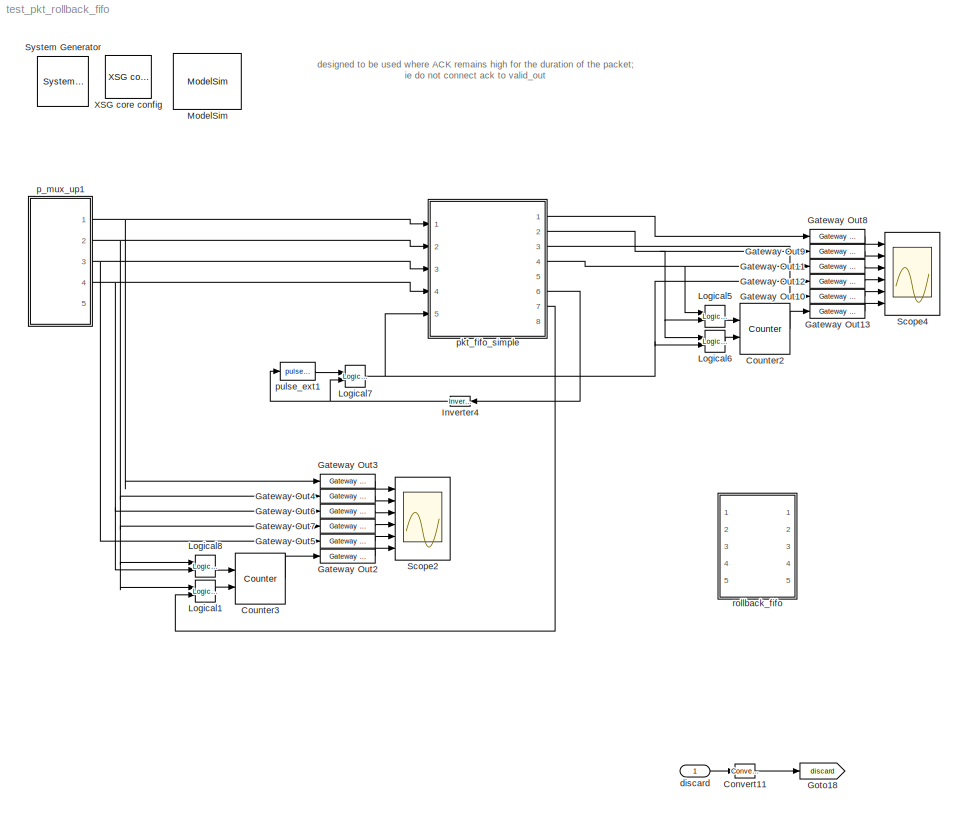
MODEL test_pkt_rollback_fifo
KIND model
BLOCK [Reference]  System Generator  REF=xbsIndex_r4/ System Generator
  AttributesFormatString = System\\nGenerator
  FunctionWithSeparateData = off
  Ports = []
  RTWMemSecDataConstants = Inherit from model
  RTWMemSecDataInternal = Inherit from model
  RTWMemSecDataParameters = Inherit from model
  RTWMemSecFuncExecute = Inherit from model
  RTWMemSecFuncInitTerm = Inherit from model
  ShowPortLabels = FromPortIcon
  SourceBlock = xbsIndex_r4/ System Generator
  SourceType = Xilinx System Generator Block
  SystemSampleTime = -1
  Tag = genX
  UserData = DataTag0
  UserDataPersistent = on
  block_type = sysgen
  block_version = 10.1.3
  clock_wrapper = Clock Enables
  core_generation = According to Block Masks
  dbl_ovrd = According to Block Masks
  dcm_input_clock_period = 100
  deprecated_control = off
  directory = ./test_10gbe_mux_pack/sysgen
  eval_field = 0
  has_advanced_control = 0
  incr_netlist = off
  infoedit = System Generator
  package = ff1704
  part = xc2vp70
  run_coregen = off
  sg_icon_stat = 51,50,-1,-1,red,beige,0,07734,right
  sg_mask_display = fprintf('','COMMENT: begin icon graphics');\npatch([0 51 51 0 ],[0 0 50 50 ],[0.93 0.92 0.86]);\npatch([12 4 16 4 12 25 29 33 47 36 25 17 29 17 25 36 47 33 29 25 12 ],[5 13 25 37 45 45 41 45 45 34 45 37 25 13 5 16 5 5 9 5 5 ],[0.6 0.2 0.25]);\nplot([0 51 51 0 0 ],[0 0 50 50 0 ]);\nfprintf('','COMMENT: end icon graphics');\nfprintf('','COMMENT: begin icon text');\nfprintf('','COMMENT: end icon text...<+5ch>
  sggui_pos = -1,-1,-1,-1
  simulink_period = 1
  speed = -7
  synthesis_tool = XST
  sysclk_period = 4.878
  testbench = off
  trim_vbits = Everywhere in SubSystem
  xilinxfamily = Virtex2P
BLOCK [Reference] Convert11  REF=xbsIndex_r4/Convert
  Ports = [1, 1]
  SourceBlock = xbsIndex_r4/Convert
  SourceType = Xilinx Type Converter Block
  arith_type = Boolean
  bin_pt = 6
  block_type = convert
  block_version = 10.1.3
  dbl_ovrd = off
  has_advanced_control = 0
  infoedit = Hardware notes: rounding and saturating require hardware resources; truncating and wrapping do not.
  latency = 0
  n_bits = 8
  overflow = Wrap
  pipeline = off
  quantization = Truncate
  sg_icon_stat = 20,14,1,1,white,blue,0,74901e60,right
  sg_mask_display = fprintf('','COMMENT: begin icon graphics');\npatch([0 45 45 0 ],[0 0 30 30 ],[0.77 0.82 0.91]);\npatch([15 10 17 10 15 23 25 27 35 28 22 17 23 17 22 28 35 27 25 23 15 ],[3 8 15 22 27 27 25 27 27 20 26 21 15 9 4 10 3 3 5 3 3 ],[0.98 0.96 0.92]);\nplot([0 45 45 0 0 ],[0 0 30 30 0 ]);\nfprintf('','COMMENT: end icon graphics');\nfprintf('','COMMENT: begin icon text');\ncolor('black');port_label('outpu...<+54ch>  <repeated x15 — deduplicated; at blocks: Convert11, Convert1, Convert2, Convert3, Convert, Convert10, Convert4, Convert5, Convert6, Convert7, Convert8, Convert9>
  sggui_pos = -1,-1,-1,-1
  xl_area = [0, 0, 0, 0, 0, 0, 0]
  xl_use_area = off
BLOCK [Reference] Counter2  REF=xbsIndex_r4/Counter
  Ports = [2, 1]
  SourceBlock = xbsIndex_r4/Counter
  SourceType = Xilinx Counter Block
  arith_type = Unsigned
  bin_pt = 0
  block_type = counter
  block_version = 10.1.3
  cnt_by_val = 1
  cnt_to = Inf
  cnt_type = Free Running
  dbl_ovrd = off
  en = on
  explicit_period = off
  has_advanced_control = 0
  implementation = Fabric
  infoedit = Hardware notes: Free running counters are the least expensive in hardware.  A count limited counter is implemented by combining a counter with a comparator.
  load_pin = off
  n_bits = 8
  operation = Up
  period = 1
  rst = on
  sg_icon_stat = 50,51,2,1,white,blue,0,46c73e85,right
  sg_mask_display = fprintf('','COMMENT: begin icon graphics');\npatch([0 50 50 0 ],[0 0 51 51 ],[0.77 0.82 0.91]);\npatch([11 3 15 3 11 24 28 32 46 35 24 16 28 16 24 35 46 32 28 24 11 ],[6 14 26 38 46 46 42 46 46 35 46 38 26 14 6 17 6 6 10 6 6 ],[0.98 0.96 0.92]);\nplot([0 50 50 0 0 ],[0 0 51 51 0 ]);\nfprintf('','COMMENT: end icon graphics');\nfprintf('','COMMENT: begin icon text');\ncolor('black');port_label('inpu...<+143ch>
  sggui_pos = -1,-1,-1,-1
  start_count = 0
  use_behavioral_HDL = off
  use_rpm = on
  xl_area = [0, 0, 0, 0, 0, 0, 0]
  xl_use_area = off
BLOCK [Reference] Counter3  REF=xbsIndex_r4/Counter
  Ports = [2, 1]
  SourceBlock = xbsIndex_r4/Counter
  SourceType = Xilinx Counter Block
  arith_type = Unsigned
  bin_pt = 0
  block_type = counter
  block_version = 10.1.3
  cnt_by_val = 1
  cnt_to = Inf
  cnt_type = Free Running
  dbl_ovrd = off
  en = on
  explicit_period = off
  has_advanced_control = 0
  implementation = Fabric
  infoedit = Hardware notes: Free running counters are the least expensive in hardware.  A count limited counter is implemented by combining a counter with a comparator.
  load_pin = off
  n_bits = 8
  operation = Up
  period = 1
  rst = on
  sg_icon_stat = 50,51,2,1,white,blue,0,46c73e85,right
  sg_mask_display = fprintf('','COMMENT: begin icon graphics');\npatch([0 50 50 0 ],[0 0 51 51 ],[0.77 0.82 0.91]);\npatch([11 3 15 3 11 24 28 32 46 35 24 16 28 16 24 35 46 32 28 24 11 ],[6 14 26 38 46 46 42 46 46 35 46 38 26 14 6 17 6 6 10 6 6 ],[0.98 0.96 0.92]);\nplot([0 50 50 0 0 ],[0 0 51 51 0 ]);\nfprintf('','COMMENT: end icon graphics');\nfprintf('','COMMENT: begin icon text');\ncolor('black');port_label('inpu...<+143ch>
  sggui_pos = -1,-1,-1,-1
  start_count = 0
  use_behavioral_HDL = off
  use_rpm = on
  xl_area = [0, 0, 0, 0, 0, 0, 0]
  xl_use_area = off
BLOCK [Reference] Gateway Out10  REF=xbsIndex_r4/Gateway Out
  LOCs = {}
  Ports = [1, 1]
  SourceBlock = xbsIndex_r4/Gateway Out
  SourceType = Xilinx Gateway Out Block
  block_type = gatewayout
  block_version = 10.1.3
  has_advanced_control = 0
  hdl_port = on
  infoedit = Gateway out block.  Converts Xilinx fixed point inputs into ouputs of type Simulink integer, double, or fixed point.<P><P>Hardware notes:  In hardware these blocks become top level output ports or are discarded, depending on how they are configured.  <repeated x32 — deduplicated; at blocks: Gateway Out10, Gateway Out11, Gateway Out12, Gateway Out13, Gateway Out2, Gateway Out3, Gateway Out4, Gateway Out5, Gateway Out6, Gateway Out7, Gateway Out8, Gateway Out9, Gateway Out1, Gateway Out14, Gateway Out22, Gateway Out23, +11 more>
  locs_specified = off
  sg_icon_stat = 55,14,1,1,white,yellow,0,38220381,right
  sg_mask_display = fprintf('','COMMENT: begin icon graphics');\npatch([0 55 55 0 ],[0 0 14 14 ],[0.95 0.93 0.65]);\npatch([23 21 24 21 23 27 28 29 33 30 27 25 28 25 27 30 33 29 28 27 23 ],[2 4 7 10 12 12 11 12 12 9 12 10 7 4 2 5 2 2 3 2 2 ],[0.98 0.96 0.92]);\nplot([0 55 55 0 0 ],[0 0 14 14 0 ]);\nfprintf('','COMMENT: end icon graphics');\nfprintf('','COMMENT: begin icon text');\ncolor('black');port_label('input',1,...<+129ch>  <repeated x12 — deduplicated; at blocks: Gateway Out10, Gateway Out11, Gateway Out12, Gateway Out13, Gateway Out2, Gateway Out3, Gateway Out4, Gateway Out5, Gateway Out6, Gateway Out7, Gateway Out8, Gateway Out9>
  sggui_pos = -1,-1,-1,-1
  timing_constraint = None
  xl_area = [0, 0, 0, 0, 0, 0, 0]
  xl_use_area = off
BLOCK [Reference] Gateway Out11  REF=xbsIndex_r4/Gateway Out
  LOCs = {}
  Ports = [1, 1]
  SourceBlock = xbsIndex_r4/Gateway Out
  SourceType = Xilinx Gateway Out Block
  block_type = gatewayout
  block_version = 10.1.3
  has_advanced_control = 0
  hdl_port = on
  locs_specified = off
  sg_icon_stat = 55,14,1,1,white,yellow,0,38220381,right
  sggui_pos = -1,-1,-1,-1
  timing_constraint = None
  xl_area = [0, 0, 0, 0, 0, 0, 0]
  xl_use_area = off
BLOCK [Reference] Gateway Out12  REF=xbsIndex_r4/Gateway Out
  LOCs = {}
  Ports = [1, 1]
  SourceBlock = xbsIndex_r4/Gateway Out
  SourceType = Xilinx Gateway Out Block
  block_type = gatewayout
  block_version = 10.1.3
  has_advanced_control = 0
  hdl_port = on
  locs_specified = off
  sg_icon_stat = 55,14,1,1,white,yellow,0,38220381,right
  sggui_pos = -1,-1,-1,-1
  timing_constraint = None
  xl_area = [0, 0, 0, 0, 0, 0, 0]
  xl_use_area = off
BLOCK [Reference] Gateway Out13  REF=xbsIndex_r4/Gateway Out
  LOCs = {}
  Ports = [1, 1]
  SourceBlock = xbsIndex_r4/Gateway Out
  SourceType = Xilinx Gateway Out Block
  block_type = gatewayout
  block_version = 10.1.3
  has_advanced_control = 0
  hdl_port = on
  locs_specified = off
  sg_icon_stat = 55,14,1,1,white,yellow,0,38220381,right
  sggui_pos = -1,-1,-1,-1
  timing_constraint = None
  xl_area = [0, 0, 0, 0, 0, 0, 0]
  xl_use_area = off
BLOCK [Reference] Gateway Out2  REF=xbsIndex_r4/Gateway Out
  LOCs = {}
  Ports = [1, 1]
  SourceBlock = xbsIndex_r4/Gateway Out
  SourceType = Xilinx Gateway Out Block
  block_type = gatewayout
  block_version = 10.1.3
  has_advanced_control = 0
  hdl_port = on
  locs_specified = off
  sg_icon_stat = 55,14,1,1,white,yellow,0,38220381,right
  sggui_pos = -1,-1,-1,-1
  timing_constraint = None
  xl_area = [0, 0, 0, 0, 0, 0, 0]
  xl_use_area = off
BLOCK [Reference] Gateway Out3  REF=xbsIndex_r4/Gateway Out
  LOCs = {}
  Ports = [1, 1]
  SourceBlock = xbsIndex_r4/Gateway Out
  SourceType = Xilinx Gateway Out Block
  block_type = gatewayout
  block_version = 10.1.3
  has_advanced_control = 0
  hdl_port = on
  locs_specified = off
  sg_icon_stat = 55,14,1,1,white,yellow,0,38220381,right
  sggui_pos = -1,-1,-1,-1
  timing_constraint = None
  xl_area = [0, 0, 0, 0, 0, 0, 0]
  xl_use_area = off
BLOCK [Reference] Gateway Out4  REF=xbsIndex_r4/Gateway Out
  LOCs = {}
  Ports = [1, 1]
  SourceBlock = xbsIndex_r4/Gateway Out
  SourceType = Xilinx Gateway Out Block
  block_type = gatewayout
  block_version = 10.1.3
  has_advanced_control = 0
  hdl_port = on
  locs_specified = off
  sg_icon_stat = 55,14,1,1,white,yellow,0,38220381,right
  sggui_pos = -1,-1,-1,-1
  timing_constraint = None
  xl_area = [0, 0, 0, 0, 0, 0, 0]
  xl_use_area = off
BLOCK [Reference] Gateway Out5  REF=xbsIndex_r4/Gateway Out
  LOCs = {}
  Ports = [1, 1]
  SourceBlock = xbsIndex_r4/Gateway Out
  SourceType = Xilinx Gateway Out Block
  block_type = gatewayout
  block_version = 10.1.3
  has_advanced_control = 0
  hdl_port = on
  locs_specified = off
  sg_icon_stat = 55,14,1,1,white,yellow,0,38220381,right
  sggui_pos = -1,-1,-1,-1
  timing_constraint = None
  xl_area = [0, 0, 0, 0, 0, 0, 0]
  xl_use_area = off
BLOCK [Reference] Gateway Out6  REF=xbsIndex_r4/Gateway Out
  LOCs = {}
  Ports = [1, 1]
  SourceBlock = xbsIndex_r4/Gateway Out
  SourceType = Xilinx Gateway Out Block
  block_type = gatewayout
  block_version = 10.1.3
  has_advanced_control = 0
  hdl_port = on
  locs_specified = off
  sg_icon_stat = 55,14,1,1,white,yellow,0,38220381,right
  sggui_pos = -1,-1,-1,-1
  timing_constraint = None
  xl_area = [0, 0, 0, 0, 0, 0, 0]
  xl_use_area = off
BLOCK [Reference] Gateway Out7  REF=xbsIndex_r4/Gateway Out
  LOCs = {}
  Ports = [1, 1]
  SourceBlock = xbsIndex_r4/Gateway Out
  SourceType = Xilinx Gateway Out Block
  block_type = gatewayout
  block_version = 10.1.3
  has_advanced_control = 0
  hdl_port = on
  locs_specified = off
  sg_icon_stat = 55,14,1,1,white,yellow,0,38220381,right
  sggui_pos = -1,-1,-1,-1
  timing_constraint = None
  xl_area = [0, 0, 0, 0, 0, 0, 0]
  xl_use_area = off
BLOCK [Reference] Gateway Out8  REF=xbsIndex_r4/Gateway Out
  LOCs = {}
  Ports = [1, 1]
  SourceBlock = xbsIndex_r4/Gateway Out
  SourceType = Xilinx Gateway Out Block
  block_type = gatewayout
  block_version = 10.1.3
  has_advanced_control = 0
  hdl_port = on
  locs_specified = off
  sg_icon_stat = 55,14,1,1,white,yellow,0,38220381,right
  sggui_pos = -1,-1,-1,-1
  timing_constraint = None
  xl_area = [0, 0, 0, 0, 0, 0, 0]
  xl_use_area = off
BLOCK [Reference] Gateway Out9  REF=xbsIndex_r4/Gateway Out
  LOCs = {}
  Ports = [1, 1]
  SourceBlock = xbsIndex_r4/Gateway Out
  SourceType = Xilinx Gateway Out Block
  block_type = gatewayout
  block_version = 10.1.3
  has_advanced_control = 0
  hdl_port = on
  locs_specified = off
  sg_icon_stat = 55,14,1,1,white,yellow,0,38220381,right
  sggui_pos = -1,-1,-1,-1
  timing_constraint = None
  xl_area = [0, 0, 0, 0, 0, 0, 0]
  xl_use_area = off
BLOCK [Goto] Goto18
  GotoTag = discard
  TagVisibility = local
BLOCK [Reference] Inverter4  REF=xbsIndex_r4/Inverter
  Ports = [1, 1]
  SourceBlock = xbsIndex_r4/Inverter
  SourceType = Xilinx Inverter Block
  block_type = inv
  block_version = 10.1.3
  dbl_ovrd = off
  en = off
  has_advanced_control = 0
  infoedit = Bitwise logical negation (one's complement) operator.
  latency = 0
  sg_icon_stat = 20,10,1,1,white,blue,0,1ab4a85f,left
  sg_mask_display = fprintf('','COMMENT: begin icon graphics');\npatch([0 55 55 0 ],[0 0 58 58 ],[0.77 0.82 0.91]);\npatch([13 4 17 4 13 28 32 36 52 40 28 19 32 19 28 40 52 36 32 28 13 ],[7 16 29 42 51 51 47 51 51 39 51 42 29 16 7 19 7 7 11 7 7 ],[0.98 0.96 0.92]);\nplot([0 55 55 0 0 ],[0 0 58 58 0 ]);\nfprintf('','COMMENT: end icon graphics');\nfprintf('','COMMENT: begin icon text');\ncolor('black');disp('not');\nfp...<+37ch>  <repeated x6 — deduplicated; at blocks: Inverter4, Inverter, Inverter1, Inverter2>
  sggui_pos = -1,-1,-1,-1
  xl_area = [0, 0, 0, 0, 0, 0, 0]
  xl_use_area = off
BLOCK [Reference] Logical1  REF=xbsIndex_r4/Logical
  Ports = [2, 1]
  SourceBlock = xbsIndex_r4/Logical
  SourceType = Xilinx Logical Block Block
  align_bp = on
  arith_type = Unsigned
  bin_pt = 2
  block_type = logical
  block_version = 10.1.3
  dbl_ovrd = off
  en = off
  has_advanced_control = 0
  inputs = 2
  latency = 0
  logical_function = AND
  n_bits = 8
  precision = Full
  sg_icon_stat = 20,22,2,1,white,blue,0,087b5522,right
  sg_mask_display = fprintf('','COMMENT: begin icon graphics');\npatch([0 55 55 0 ],[0 0 60 60 ],[0.77 0.82 0.91]);\npatch([13 4 17 4 13 28 32 36 52 40 28 19 32 19 28 40 52 36 32 28 13 ],[8 17 30 43 52 52 48 52 52 40 52 43 30 17 8 20 8 8 12 8 8 ],[0.98 0.96 0.92]);\nplot([0 55 55 0 0 ],[0 0 60 60 0 ]);\nfprintf('','COMMENT: end icon graphics');\nfprintf('','COMMENT: begin icon text');\ncolor('black');disp('\\newlinea...<+76ch>  <repeated x9 — deduplicated; at blocks: Logical1, Logical5, Logical6, Logical8, commit, fifo_empty, fifo_empty1, fifo_empty2, valid_eof_0>
  sggui_pos = -1,-1,-1,-1
  xl_area = [0, 0, 0, 0, 0, 0, 0]
  xl_use_area = off
BLOCK [Reference] Logical5  REF=xbsIndex_r4/Logical
  Ports = [2, 1]
  SourceBlock = xbsIndex_r4/Logical
  SourceType = Xilinx Logical Block Block
  align_bp = on
  arith_type = Unsigned
  bin_pt = 2
  block_type = logical
  block_version = 10.1.3
  dbl_ovrd = off
  en = off
  has_advanced_control = 0
  inputs = 2
  latency = 0
  logical_function = AND
  n_bits = 8
  precision = Full
  sg_icon_stat = 20,22,2,1,white,blue,0,087b5522,right
  sggui_pos = -1,-1,-1,-1
  xl_area = [0, 0, 0, 0, 0, 0, 0]
  xl_use_area = off
BLOCK [Reference] Logical6  REF=xbsIndex_r4/Logical
  Ports = [2, 1]
  SourceBlock = xbsIndex_r4/Logical
  SourceType = Xilinx Logical Block Block
  align_bp = on
  arith_type = Unsigned
  bin_pt = 2
  block_type = logical
  block_version = 10.1.3
  dbl_ovrd = off
  en = off
  has_advanced_control = 0
  inputs = 2
  latency = 0
  logical_function = AND
  n_bits = 8
  precision = Full
  sg_icon_stat = 20,22,2,1,white,blue,0,087b5522,right
  sggui_pos = -1,-1,-1,-1
  xl_area = [0, 0, 0, 0, 0, 0, 0]
  xl_use_area = off
BLOCK [Reference] Logical7  REF=xbsIndex_r4/Logical
  Ports = [2, 1]
  SourceBlock = xbsIndex_r4/Logical
  SourceType = Xilinx Logical Block Block
  align_bp = on
  arith_type = Unsigned
  bin_pt = 2
  block_type = logical
  block_version = 10.1.3
  dbl_ovrd = off
  en = off
  has_advanced_control = 0
  inputs = 2
  latency = 0
  logical_function = OR
  n_bits = 8
  precision = Full
  sg_icon_stat = 20,22,2,1,white,blue,0,f4a65842,right
  sg_mask_display = fprintf('','COMMENT: begin icon graphics');\npatch([0 55 55 0 ],[0 0 60 60 ],[0.77 0.82 0.91]);\npatch([13 4 17 4 13 28 32 36 52 40 28 19 32 19 28 40 52 36 32 28 13 ],[8 17 30 43 52 52 48 52 52 40 52 43 30 17 8 20 8 8 12 8 8 ],[0.98 0.96 0.92]);\nplot([0 55 55 0 0 ],[0 0 60 60 0 ]);\nfprintf('','COMMENT: end icon graphics');\nfprintf('','COMMENT: begin icon text');\ncolor('black');disp('\\newlineo...<+75ch>
  sggui_pos = -1,-1,-1,-1
  xl_area = [0, 0, 0, 0, 0, 0, 0]
  xl_use_area = off
BLOCK [Reference] Logical8  REF=xbsIndex_r4/Logical
  Ports = [2, 1]
  SourceBlock = xbsIndex_r4/Logical
  SourceType = Xilinx Logical Block Block
  align_bp = on
  arith_type = Unsigned
  bin_pt = 2
  block_type = logical
  block_version = 10.1.3
  dbl_ovrd = off
  en = off
  has_advanced_control = 0
  inputs = 2
  latency = 0
  logical_function = AND
  n_bits = 8
  precision = Full
  sg_icon_stat = 20,22,2,1,white,blue,0,087b5522,right
  sggui_pos = -1,-1,-1,-1
  xl_area = [0, 0, 0, 0, 0, 0, 0]
  xl_use_area = off
BLOCK [Reference] ModelSim  REF=xbsIndex_r4/ModelSim
  Ports = []
  SourceBlock = xbsIndex_r4/ModelSim
  SourceType = ModelSim HDL Co-Simulation Interface Block
  block_type = hdlcosim
  block_version = 10.1.3
  custom_scripts = off
  dir = ./modelsim
  has_advanced_control = 0
  infoedit = Allow other blocks to schedule HDL co-simulation tasks.<P><P>Note that selecting \"Skip compilation\" when inappropriate can cause simulation errors and failures. Please refer to the block help for details.
  leave_open = on
  sg_icon_stat = 68,56,0,0,blue,white,0,30303992,right
  sg_mask_display = fprintf('','COMMENT: begin icon graphics');\npatch([0 65 65 0 ],[0 0 56 56 ],[0.98 0.96 0.92]);\npatch([17 8 21 8 17 32 36 40 56 43 31 22 34 22 31 43 56 40 36 32 17 ],[6 15 28 41 50 50 46 50 50 37 49 40 28 16 7 19 6 6 10 6 6 ],[0.77 0.82 0.91]);\nplot([0 65 65 0 0 ],[0 0 56 56 0 ]);\nfprintf('','COMMENT: end icon graphics');\nfprintf('','COMMENT: begin icon text');\n\nfprintf('','COMMENT: end icon...<+32ch>
  sggui_pos = -1,-1,-1,-1
  skip_compile = off
  startup_timeout = 40
  use_unisim = off
  waveform = on
BLOCK [Scope] Scope2
  DataFormat = StructureWithTime
  Floating = off
  LimitDataPoints = off
  NumInputPorts = 6
  Ports = [6]
  SampleTime = 0
  SaveName = ScopeData5
  YMax = 453.6~1~1~1~1~5
  YMin = 410.4~-1~-1~-1~0~-5
  ZoomMode = xonly
BLOCK [Scope] Scope4
  DataFormat = StructureWithTime
  Floating = off
  LimitDataPoints = off
  NumInputPorts = 6
  Ports = [6]
  SampleTime = 0
  SaveName = ScopeData7
  YMax = 453.6~1~1~1~1~5
  YMin = 410.4~-1~-1~-1~0~-5
  ZoomMode = yonly
BLOCK [Reference] XSG core config  REF=xps_library/XSG core config  (lib defined in mdl_00b5cec29cd0, mdl_02ab6ecaa3d1, +5 more)
  BEE2_ctrl_clk_src = sys_clk
  BEE2_usr_clk_src = sys_clk
  CORR_clk_src = sys_clk
  FunctionWithSeparateData = off
  Ports = []
  ROACH_clk_src = arb_clk
  RTWMemSecDataConstants = Inherit from model
  RTWMemSecDataInternal = Inherit from model
  RTWMemSecDataParameters = Inherit from model
  RTWMemSecFuncExecute = Inherit from model
  RTWMemSecFuncInitTerm = Inherit from model
  ShowPortLabels = FromPortIcon
  SourceBlock = xps_library/XSG core config
  SourceType = xsg core config
  SystemSampleTime = -1
  Tag = xps:xsg
  clk_rate = 100
  clk_src = sys_clk
  gpio_clk_bit_index = 0
  gpio_clk_io_group = iBOB:sma
  hw_sys = BEE2_usr
  iBOB_clk_src = sys_clk
  ibob_linux = off
  mpc_type = powerpc405
  sample_period = 1
  synthesis_tool = XST
BLOCK [Inport] discard
  IconDisplay = Port number
  OutDataType = sfix(16)
  OutScaling = 2^0
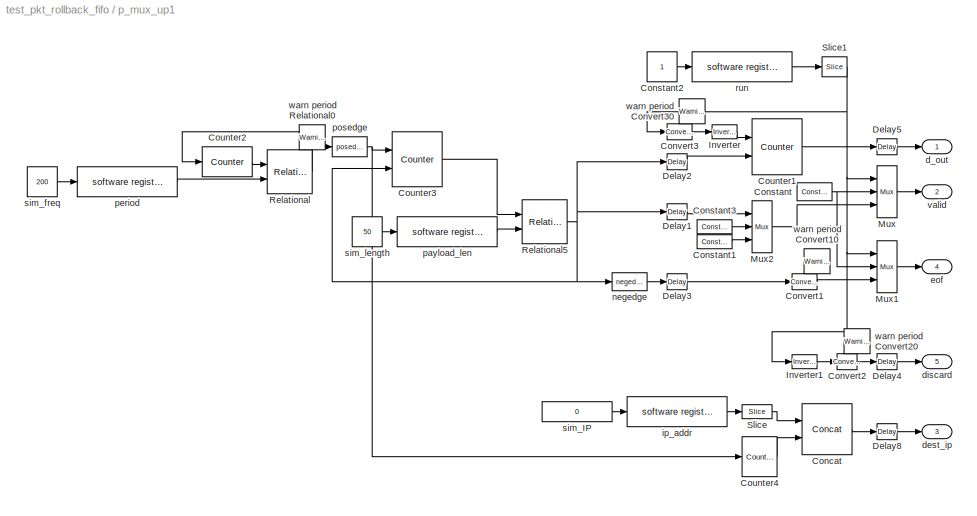
BLOCK [SubSystem] p_mux_up1
  FunctionWithSeparateData = off
  MaskIconFrame = on
  MaskIconOpaque = on
  MaskIconRotate = none
  MaskIconUnits = autoscale
  MinAlgLoopOccurrences = off
  Ports = [0, 5]
  RTWSystemCode = Auto
BLOCK [Reference] p_mux_up1/Concat  REF=xbsIndex_r4/Concat
  Ports = [2, 1]
  SourceBlock = xbsIndex_r4/Concat
  SourceType = Xilinx Bus Concatenator Block
  block_type = concat
  block_version = 10.1.3
  dbl_ovrd = off
  has_advanced_control = 0
  infoedit = Concatenates two or more inputs.  Output will be cast to an unsigned value with the binary point at zero.
  num_inputs = 2
  sg_icon_stat = 50,51,1,1,white,blue,0,df1e5aba,right
  sg_mask_display = fprintf('','COMMENT: begin icon graphics');\npatch([0 60 60 0 ],[0 0 60 60 ],[0.77 0.82 0.91]);\npatch([14 4 18 4 14 30 34 38 55 42 29 20 35 20 29 42 55 38 34 30 14 ],[6 16 30 44 54 54 50 54 54 41 54 45 30 15 6 19 6 6 10 6 6 ],[0.98 0.96 0.92]);\nplot([0 60 60 0 0 ],[0 0 60 60 0 ]);\nfprintf('','COMMENT: end icon graphics');\nfprintf('','COMMENT: begin icon text');\ncolor('black');port_label('inpu...<+96ch>  <repeated x4 — deduplicated; at blocks: Concat, Concat3, Concat_status>
  sggui_pos = -1,-1,-1,-1
BLOCK [Reference] p_mux_up1/Constant  REF=xbsIndex_r4/Constant
  Ports = [0, 1]
  SourceBlock = xbsIndex_r4/Constant
  SourceType = Xilinx Constant Block Block
  arith_type = Boolean
  bin_pt = 0
  block_type = constant
  block_version = 10.1.3
  carry = CIN
  const = 0
  dbl_ovrd = off
  dsp48_infoedit = The use of this block for DSP48 instructions is deprecated.  Please use the Opmode block.
  equ = P=C
  explicit_period = on
  has_advanced_control = 0
  inp1 = P
  inp2 = PCIN>>17
  n_bits = 1
  opr = +
  opselect = C
  period = 1
  sg_icon_stat = 35,18,1,1,white,blue,0,72d575a1,right
  sg_mask_display = fprintf('','COMMENT: begin icon graphics');\npatch([0 55 55 0 ],[0 0 26 26 ],[0.77 0.82 0.91]);\npatch([20 16 22 16 20 27 29 31 38 32 26 22 28 22 26 32 38 31 29 27 20 ],[3 7 13 19 23 23 21 23 23 17 23 19 13 7 3 9 3 3 5 3 3 ],[0.98 0.96 0.92]);\nplot([0 55 55 0 0 ],[0 0 26 26 0 ]);\nfprintf('','COMMENT: end icon graphics');\nfprintf('','COMMENT: begin icon text');\ncolor('black');port_label('output...<+50ch>  <repeated x4 — deduplicated; at blocks: Constant, Constant1, Constant3, Constant7>
  sggui_pos = -1,-1,-1,-1
BLOCK [Reference] p_mux_up1/Constant1  REF=xbsIndex_r4/Constant
  Ports = [0, 1]
  SourceBlock = xbsIndex_r4/Constant
  SourceType = Xilinx Constant Block Block
  arith_type = Boolean
  bin_pt = 0
  block_type = constant
  block_version = 10.1.3
  carry = CIN
  const = 1
  dbl_ovrd = off
  dsp48_infoedit = The use of this block for DSP48 instructions is deprecated.  Please use the Opmode block.
  equ = P=C
  explicit_period = off
  has_advanced_control = 0
  inp1 = P
  inp2 = PCIN>>17
  n_bits = 1
  opr = +
  opselect = C
  period = 1
  sg_icon_stat = 35,14,1,1,white,blue,0,06094819,right
  sggui_pos = -1,-1,-1,-1
BLOCK [Constant] p_mux_up1/Constant2
  OutDataType = sfix(16)
  OutScaling = 2^0
BLOCK [Reference] p_mux_up1/Constant3  REF=xbsIndex_r4/Constant
  Ports = [0, 1]
  SourceBlock = xbsIndex_r4/Constant
  SourceType = Xilinx Constant Block Block
  arith_type = Boolean
  bin_pt = 0
  block_type = constant
  block_version = 10.1.3
  carry = CIN
  const = 0
  dbl_ovrd = off
  dsp48_infoedit = The use of this block for DSP48 instructions is deprecated.  Please use the Opmode block.
  equ = P=C
  explicit_period = off
  has_advanced_control = 0
  inp1 = P
  inp2 = PCIN>>17
  n_bits = 1
  opr = +
  opselect = C
  period = 1
  sg_icon_stat = 35,14,1,1,white,blue,0,72d575a1,right
  sggui_pos = -1,-1,-1,-1
BLOCK [Reference] p_mux_up1/Convert1  REF=xbsIndex_r4/Convert
  Ports = [1, 1]
  SourceBlock = xbsIndex_r4/Convert
  SourceType = Xilinx Type Converter Block
  arith_type = Boolean
  bin_pt = 6
  block_type = convert
  block_version = 10.1.3
  dbl_ovrd = off
  has_advanced_control = 0
  infoedit = Hardware notes: rounding and saturating require hardware resources; truncating and wrapping do not.
  latency = 0
  n_bits = 8
  overflow = Wrap
  pipeline = off
  quantization = Truncate
  sg_icon_stat = 25,16,1,1,white,blue,0,74901e60,right
  sggui_pos = -1,-1,-1,-1
  xl_area = [0, 0, 0, 0, 0, 0, 0]
  xl_use_area = off
BLOCK [Reference] p_mux_up1/Convert2  REF=xbsIndex_r4/Convert
  Ports = [1, 1]
  SourceBlock = xbsIndex_r4/Convert
  SourceType = Xilinx Type Converter Block
  arith_type = Boolean
  bin_pt = 6
  block_type = convert
  block_version = 10.1.3
  dbl_ovrd = off
  has_advanced_control = 0
  infoedit = Hardware notes: rounding and saturating require hardware resources; truncating and wrapping do not.
  latency = 0
  n_bits = 8
  overflow = Wrap
  pipeline = off
  quantization = Truncate
  sg_icon_stat = 20,16,1,1,white,blue,0,74901e60,right
  sggui_pos = -1,-1,-1,-1
  xl_area = [0, 0, 0, 0, 0, 0, 0]
  xl_use_area = off
BLOCK [Reference] p_mux_up1/Convert3  REF=xbsIndex_r4/Convert
  Ports = [1, 1]
  SourceBlock = xbsIndex_r4/Convert
  SourceType = Xilinx Type Converter Block
  arith_type = Boolean
  bin_pt = 6
  block_type = convert
  block_version = 10.1.3
  dbl_ovrd = off
  has_advanced_control = 0
  infoedit = Hardware notes: rounding and saturating require hardware resources; truncating and wrapping do not.
  latency = 0
  n_bits = 8
  overflow = Wrap
  pipeline = off
  quantization = Truncate
  sg_icon_stat = 25,16,1,1,white,blue,0,74901e60,right
  sggui_pos = -1,-1,-1,-1
  xl_area = [0, 0, 0, 0, 0, 0, 0]
  xl_use_area = off
BLOCK [Reference] p_mux_up1/Counter1  REF=xbsIndex_r4/Counter
  Ports = [2, 1]
  SourceBlock = xbsIndex_r4/Counter
  SourceType = Xilinx Counter Block
  arith_type = Unsigned
  bin_pt = 0
  block_type = counter
  block_version = 10.1.3
  cnt_by_val = 1
  cnt_to = Inf
  cnt_type = Free Running
  dbl_ovrd = off
  en = on
  explicit_period = off
  has_advanced_control = 0
  implementation = Fabric
  infoedit = Hardware notes: Free running counters are the least expensive in hardware.  A count limited counter is implemented by combining a counter with a comparator.
  load_pin = off
  n_bits = 64
  operation = Up
  period = 1
  rst = on
  sg_icon_stat = 50,56,1,1,white,blue,0,46c73e85,right
  sg_mask_display = fprintf('','COMMENT: begin icon graphics');\npatch([0 60 60 0 ],[0 0 60 60 ],[0.77 0.82 0.91]);\npatch([14 4 18 4 14 30 34 38 55 42 29 20 35 20 29 42 55 38 34 30 14 ],[6 16 30 44 54 54 50 54 54 41 54 45 30 15 6 19 6 6 10 6 6 ],[0.98 0.96 0.92]);\nplot([0 60 60 0 0 ],[0 0 60 60 0 ]);\nfprintf('','COMMENT: end icon graphics');\nfprintf('','COMMENT: begin icon text');\ncolor('black');port_label('inpu...<+143ch>
  sggui_pos = -1,-1,-1,-1
  start_count = 0
  use_behavioral_HDL = off
  use_rpm = off
  xl_area = [0, 0, 0, 0, 0, 0, 0]
  xl_use_area = off
BLOCK [Reference] p_mux_up1/Counter2  REF=xbsIndex_r4/Counter
  Ports = [1, 1]
  SourceBlock = xbsIndex_r4/Counter
  SourceType = Xilinx Counter Block
  arith_type = Unsigned
  bin_pt = 0
  block_type = counter
  block_version = 10.1.3
  cnt_by_val = 1
  cnt_to = Inf
  cnt_type = Free Running
  dbl_ovrd = off
  en = off
  explicit_period = on
  has_advanced_control = 0
  implementation = Fabric
  infoedit = Hardware notes: Free running counters are the least expensive in hardware.  A count limited counter is implemented by combining a counter with a comparator.
  load_pin = off
  n_bits = 32
  operation = Up
  period = 1
  rst = on
  sg_icon_stat = 50,30,1,1,white,blue,0,300e9576,right
  sg_mask_display = fprintf('','COMMENT: begin icon graphics');\npatch([0 60 60 0 ],[0 0 60 60 ],[0.77 0.82 0.91]);\npatch([14 4 18 4 14 30 34 38 55 42 29 20 35 20 29 42 55 38 34 30 14 ],[6 16 30 44 54 54 50 54 54 41 54 45 30 15 6 19 6 6 10 6 6 ],[0.98 0.96 0.92]);\nplot([0 60 60 0 0 ],[0 0 60 60 0 ]);\nfprintf('','COMMENT: end icon graphics');\nfprintf('','COMMENT: begin icon text');\ncolor('black');port_label('inpu...<+99ch>
  sggui_pos = -1,-1,-1,-1
  start_count = 1
  use_behavioral_HDL = off
  use_rpm = on
  xl_area = [0, 0, 0, 0, 0, 0, 0]
  xl_use_area = off
BLOCK [Reference] p_mux_up1/Counter3  REF=xbsIndex_r4/Counter
  Ports = [2, 1]
  SourceBlock = xbsIndex_r4/Counter
  SourceType = Xilinx Counter Block
  arith_type = Unsigned
  bin_pt = 0
  block_type = counter
  block_version = 10.1.3
  cnt_by_val = 1
  cnt_to = 1023
  cnt_type = Free Running
  dbl_ovrd = off
  en = on
  explicit_period = on
  has_advanced_control = 0
  implementation = Fabric
  infoedit = Hardware notes: Free running counters are the least expensive in hardware.  A count limited counter is implemented by combining a counter with a comparator.
  load_pin = off
  n_bits = 32
  operation = Up
  period = 1
  rst = on
  sg_icon_stat = 50,55,1,1,white,blue,0,46c73e85,right
  sg_mask_display = fprintf('','COMMENT: begin icon graphics');\npatch([0 50 50 0 ],[0 0 55 55 ],[0.77 0.82 0.91]);\npatch([11 3 15 3 11 24 28 32 46 35 24 16 28 16 24 35 46 32 28 24 11 ],[8 16 28 40 48 48 44 48 48 37 48 40 28 16 8 19 8 8 12 8 8 ],[0.98 0.96 0.92]);\nplot([0 50 50 0 0 ],[0 0 55 55 0 ]);\nfprintf('','COMMENT: end icon graphics');\nfprintf('','COMMENT: begin icon text');\ncolor('black');port_label('inpu...<+143ch>
  sggui_pos = -1,-1,-1,-1
  start_count = 0
  use_behavioral_HDL = off
  use_rpm = on
  xl_area = [0, 0, 0, 0, 0, 0, 0]
  xl_use_area = off
BLOCK [Reference] p_mux_up1/Counter4  REF=xbsIndex_r4/Counter
  Ports = [1, 1]
  SourceBlock = xbsIndex_r4/Counter
  SourceType = Xilinx Counter Block
  arith_type = Unsigned
  bin_pt = 0
  block_type = counter
  block_version = 10.1.3
  cnt_by_val = 1
  cnt_to = 1023
  cnt_type = Free Running
  dbl_ovrd = off
  en = on
  explicit_period = on
  has_advanced_control = 0
  implementation = Fabric
  infoedit = Hardware notes: Free running counters are the least expensive in hardware.  A count limited counter is implemented by combining a counter with a comparator.
  load_pin = off
  n_bits = 2
  operation = Up
  period = 1
  rst = off
  sg_icon_stat = 35,40,1,1,white,blue,0,1018756c,right
  sg_mask_display = fprintf('','COMMENT: begin icon graphics');\npatch([0 60 60 0 ],[0 0 60 60 ],[0.77 0.82 0.91]);\npatch([14 4 18 4 14 30 34 38 55 42 29 20 35 20 29 42 55 38 34 30 14 ],[6 16 30 44 54 54 50 54 54 41 54 45 30 15 6 19 6 6 10 6 6 ],[0.98 0.96 0.92]);\nplot([0 60 60 0 0 ],[0 0 60 60 0 ]);\nfprintf('','COMMENT: end icon graphics');\nfprintf('','COMMENT: begin icon text');\ncolor('black');port_label('inpu...<+98ch>
  sggui_pos = -1,-1,-1,-1
  start_count = 0
  use_behavioral_HDL = off
  use_rpm = on
  xl_area = [0, 0, 0, 0, 0, 0, 0]
  xl_use_area = off
BLOCK [Reference] p_mux_up1/Delay1  REF=xbsIndex_r4/Delay
  Ports = [1, 1]
  SourceBlock = xbsIndex_r4/Delay
  SourceType = Xilinx Delay Block
  block_type = delay
  block_version = 10.1.3
  dbl_ovrd = off
  en = off
  has_advanced_control = 0
  infoedit = Hardware notes: A delay line is a chain, each link of which is an SRL16 followed by a flip-flop.
  latency = 1
  reg_retiming = on
  sg_icon_stat = 20,16,1,1,white,blue,0,fc531c0e,right
  sg_mask_display = fprintf('','COMMENT: begin icon graphics');\npatch([0 60 60 0 ],[0 0 56 56 ],[0.77 0.82 0.91]);\npatch([15 6 19 6 15 30 34 38 54 41 29 20 32 20 29 41 54 38 34 30 15 ],[6 15 28 41 50 50 46 50 50 37 49 40 28 16 7 19 6 6 10 6 6 ],[0.98 0.96 0.92]);\nplot([0 60 60 0 0 ],[0 0 56 56 0 ]);\nfprintf('','COMMENT: end icon graphics');\nfprintf('','COMMENT: begin icon text');\ncolor('black');disp('z^{-1}','t...<+55ch>  <repeated x9 — deduplicated; at blocks: Delay1, Delay2, Delay3, Delay4, Delay5, Delay>
  sggui_pos = -1,-1,-1,-1
  xl_area = [0, 0, 0, 0, 0, 0, 0]
  xl_use_area = off
BLOCK [Reference] p_mux_up1/Delay2  REF=xbsIndex_r4/Delay
  Ports = [1, 1]
  SourceBlock = xbsIndex_r4/Delay
  SourceType = Xilinx Delay Block
  block_type = delay
  block_version = 10.1.3
  dbl_ovrd = off
  en = off
  has_advanced_control = 0
  infoedit = Hardware notes: A delay line is a chain, each link of which is an SRL16 followed by a flip-flop.
  latency = 1
  reg_retiming = on
  sg_icon_stat = 20,16,1,1,white,blue,0,fc531c0e,right
  sggui_pos = -1,-1,-1,-1
  xl_area = [0, 0, 0, 0, 0, 0, 0]
  xl_use_area = off
BLOCK [Reference] p_mux_up1/Delay3  REF=xbsIndex_r4/Delay
  Ports = [1, 1]
  SourceBlock = xbsIndex_r4/Delay
  SourceType = Xilinx Delay Block
  block_type = delay
  block_version = 10.1.3
  dbl_ovrd = off
  en = off
  has_advanced_control = 0
  infoedit = Hardware notes: A delay line is a chain, each link of which is an SRL16 followed by a flip-flop.
  latency = 1
  reg_retiming = on
  sg_icon_stat = 20,16,1,1,white,blue,0,fc531c0e,right
  sggui_pos = -1,-1,-1,-1
  xl_area = [0, 0, 0, 0, 0, 0, 0]
  xl_use_area = off
BLOCK [Reference] p_mux_up1/Delay4  REF=xbsIndex_r4/Delay
  Ports = [1, 1]
  SourceBlock = xbsIndex_r4/Delay
  SourceType = Xilinx Delay Block
  block_type = delay
  block_version = 10.1.3
  dbl_ovrd = off
  en = off
  has_advanced_control = 0
  infoedit = Hardware notes: A delay line is a chain, each link of which is an SRL16 followed by a flip-flop.
  latency = 1
  reg_retiming = on
  sg_icon_stat = 20,16,1,1,white,blue,0,fc531c0e,right
  sggui_pos = -1,-1,-1,-1
  xl_area = [0, 0, 0, 0, 0, 0, 0]
  xl_use_area = off
BLOCK [Reference] p_mux_up1/Delay5  REF=xbsIndex_r4/Delay
  Ports = [1, 1]
  SourceBlock = xbsIndex_r4/Delay
  SourceType = Xilinx Delay Block
  block_type = delay
  block_version = 10.1.3
  dbl_ovrd = off
  en = off
  has_advanced_control = 0
  infoedit = Hardware notes: A delay line is a chain, each link of which is an SRL16 followed by a flip-flop.
  latency = 1
  reg_retiming = on
  sg_icon_stat = 20,16,1,1,white,blue,0,fc531c0e,right
  sggui_pos = -1,-1,-1,-1
  xl_area = [0, 0, 0, 0, 0, 0, 0]
  xl_use_area = off
BLOCK [Reference] p_mux_up1/Delay8  REF=xbsIndex_r4/Delay
  Ports = [1, 1]
  SourceBlock = xbsIndex_r4/Delay
  SourceType = Xilinx Delay Block
  block_type = delay
  block_version = 10.1.3
  dbl_ovrd = off
  en = off
  has_advanced_control = 0
  infoedit = Hardware notes: A delay line is a chain, each link of which is an SRL16 followed by a flip-flop.
  latency = 2
  reg_retiming = on
  sg_icon_stat = 20,16,1,1,white,blue,0,0a7a6cf1,right
  sg_mask_display = fprintf('','COMMENT: begin icon graphics');\npatch([0 60 60 0 ],[0 0 56 56 ],[0.77 0.82 0.91]);\npatch([15 6 19 6 15 30 34 38 54 41 29 20 32 20 29 41 54 38 34 30 15 ],[6 15 28 41 50 50 46 50 50 37 49 40 28 16 7 19 6 6 10 6 6 ],[0.98 0.96 0.92]);\nplot([0 60 60 0 0 ],[0 0 56 56 0 ]);\nfprintf('','COMMENT: end icon graphics');\nfprintf('','COMMENT: begin icon text');\ncolor('black');disp('z^{-2}','t...<+55ch>
  sggui_pos = -1,-1,-1,-1
  xl_area = [0, 0, 0, 0, 0, 0, 0]
  xl_use_area = off
BLOCK [Reference] p_mux_up1/Inverter  REF=xbsIndex_r4/Inverter
  Ports = [1, 1]
  SourceBlock = xbsIndex_r4/Inverter
  SourceType = Xilinx Inverter Block
  block_type = inv
  block_version = 10.1.3
  dbl_ovrd = off
  en = off
  has_advanced_control = 0
  infoedit = Bitwise logical negation (one's complement) operator.
  latency = 0
  sg_icon_stat = 25,14,1,1,white,blue,0,1ab4a85f,right
  sggui_pos = -1,-1,-1,-1
  xl_area = [0, 0, 0, 0, 0, 0, 0]
  xl_use_area = off
BLOCK [Reference] p_mux_up1/Inverter1  REF=xbsIndex_r4/Inverter
  Ports = [1, 1]
  SourceBlock = xbsIndex_r4/Inverter
  SourceType = Xilinx Inverter Block
  block_type = inv
  block_version = 10.1.3
  dbl_ovrd = off
  en = off
  has_advanced_control = 0
  infoedit = Bitwise logical negation (one's complement) operator.
  latency = 0
  sg_icon_stat = 25,14,1,1,white,blue,0,1ab4a85f,right
  sggui_pos = -1,-1,-1,-1
  xl_area = [0, 0, 0, 0, 0, 0, 0]
  xl_use_area = off
BLOCK [Reference] p_mux_up1/Mux  REF=xbsIndex_r4/Mux
  Ports = [3, 1]
  SourceBlock = xbsIndex_r4/Mux
  SourceType = Xilinx Bus Multiplexer Block
  arith_type = Signed  (2's comp)
  bin_pt = 2
  block_type = mux
  block_version = 10.1.3
  dbl_ovrd = off
  en = off
  has_advanced_control = 0
  inputs = 2
  latency = 1
  n_bits = 8
  overflow = Wrap
  precision = Full
  quantization = Truncate
  sg_icon_stat = 20,52,1,1,white,blue,3,03f9c9b9,right
  sg_mask_display = fprintf('','COMMENT: begin icon graphics');\npatch([0 45 45 0 ],[0 14.8571 89.1429 104 ],[0.77 0.82 0.91]);\npatch([10 3 14 3 10 22 25 28 41 31 21 14 25 14 21 31 41 28 25 22 10 ],[34 41 52 63 70 70 67 70 70 60 70 63 52 41 34 44 34 34 37 34 34 ],[0.98 0.96 0.92]);\nplot([0 45 45 0 0 ],[0 14.8571 89.1429 104 0 ]);\nfprintf('','COMMENT: end icon graphics');\nfprintf('','COMMENT: begin icon text');\nc...<+226ch>  <repeated x3 — deduplicated; at blocks: Mux, Mux1, Mux2>
  sggui_pos = -1,-1,-1,-1
  xl_area = [0, 0, 0, 0, 0, 0, 0]
  xl_use_area = off
BLOCK [Reference] p_mux_up1/Mux1  REF=xbsIndex_r4/Mux
  Ports = [3, 1]
  SourceBlock = xbsIndex_r4/Mux
  SourceType = Xilinx Bus Multiplexer Block
  arith_type = Signed  (2's comp)
  bin_pt = 2
  block_type = mux
  block_version = 10.1.3
  dbl_ovrd = off
  en = off
  has_advanced_control = 0
  inputs = 2
  latency = 1
  n_bits = 8
  overflow = Wrap
  precision = Full
  quantization = Truncate
  sg_icon_stat = 20,52,1,1,white,blue,3,03f9c9b9,right
  sggui_pos = -1,-1,-1,-1
  xl_area = [0, 0, 0, 0, 0, 0, 0]
  xl_use_area = off
BLOCK [Reference] p_mux_up1/Mux2  REF=xbsIndex_r4/Mux
  Ports = [3, 1]
  SourceBlock = xbsIndex_r4/Mux
  SourceType = Xilinx Bus Multiplexer Block
  arith_type = Signed  (2's comp)
  bin_pt = 2
  block_type = mux
  block_version = 10.1.3
  dbl_ovrd = off
  en = off
  has_advanced_control = 0
  inputs = 2
  latency = 1
  n_bits = 8
  overflow = Wrap
  precision = Full
  quantization = Truncate
  sg_icon_stat = 20,52,1,1,white,blue,3,03f9c9b9,right
  sggui_pos = -1,-1,-1,-1
  xl_area = [0, 0, 0, 0, 0, 0, 0]
  xl_use_area = off
BLOCK [Reference] p_mux_up1/Relational  REF=xbsIndex_r4/Relational
  Ports = [2, 1]
  SourceBlock = xbsIndex_r4/Relational
  SourceType = Xilinx Arithmetic Relational Operator Block
  block_type = relational
  block_version = 10.1.3
  dbl_ovrd = off
  en = off
  has_advanced_control = 0
  latency = 0
  mode = a>=b
  sg_icon_stat = 45,44,1,1,white,blue,0,6d6ac162,right
  sg_mask_display = fprintf('','COMMENT: begin icon graphics');\npatch([0 55 55 0 ],[0 0 56 56 ],[0.77 0.82 0.91]);\npatch([13 4 17 4 13 28 32 36 52 40 28 19 32 19 28 40 52 36 32 28 13 ],[6 15 28 41 50 50 46 50 50 38 50 41 28 15 6 18 6 6 10 6 6 ],[0.98 0.96 0.92]);\nplot([0 55 55 0 0 ],[0 0 56 56 0 ]);\nfprintf('','COMMENT: end icon graphics');\nfprintf('','COMMENT: begin icon text');\ncolor('black');port_label('inpu...<+169ch>
  sggui_pos = -1,-1,-1,-1
  xl_area = [0, 0, 0, 0, 0, 0, 0]
  xl_use_area = off
BLOCK [Reference] p_mux_up1/Relational5  REF=xbsIndex_r4/Relational
  Ports = [2, 1]
  SourceBlock = xbsIndex_r4/Relational
  SourceType = Xilinx Arithmetic Relational Operator Block
  block_type = relational
  block_version = 10.1.3
  dbl_ovrd = off
  en = off
  has_advanced_control = 0
  latency = 0
  mode = a<b
  sg_icon_stat = 45,44,1,1,white,blue,0,52a6a481,right
  sg_mask_display = fprintf('','COMMENT: begin icon graphics');\npatch([0 55 55 0 ],[0 0 56 56 ],[0.77 0.82 0.91]);\npatch([13 4 17 4 13 28 32 36 52 40 28 19 32 19 28 40 52 36 32 28 13 ],[6 15 28 41 50 50 46 50 50 38 50 41 28 15 6 18 6 6 10 6 6 ],[0.98 0.96 0.92]);\nplot([0 55 55 0 0 ],[0 0 56 56 0 ]);\nfprintf('','COMMENT: end icon graphics');\nfprintf('','COMMENT: begin icon text');\ncolor('black');port_label('inpu...<+168ch>
  sggui_pos = -1,-1,-1,-1
  xl_area = [0, 0, 0, 0, 0, 0, 0]
  xl_use_area = off
BLOCK [Reference] p_mux_up1/Slice  REF=xbsIndex_r4/Slice
  Ports = [1, 1]
  SourceBlock = xbsIndex_r4/Slice
  SourceType = Xilinx Bit Slice Extractor Block
  base0 = LSB of Input
  base1 = MSB of Input
  bit0 = 0
  bit1 = 0
  block_type = slice
  block_version = 10.1.3
  boolean_output = off
  dbl_ovrd = off
  has_advanced_control = 0
  infoedit = Extracts a given range of bits from each input sample and presents it at the output.  The output type is ordinarily unsigned with binary point at zero, but can be Boolean when the slice is one bit wide.<P><P>Hardware notes: In hardware this block costs nothing.  <repeated x8 — deduplicated; at blocks: Slice, Slice1, buf_data3, buf_eof3, Slice2, Slice3>
  mode = Upper Bit Location + Width
  nbits = 30
  sg_icon_stat = 30,14,1,1,white,blue,0,b1026674,right
  sg_mask_display = fprintf('','COMMENT: begin icon graphics');\npatch([0 60 60 0 ],[0 0 30 30 ],[0.77 0.82 0.91]);\npatch([22 17 24 17 22 30 32 34 42 35 29 24 30 24 29 35 42 34 32 30 22 ],[3 8 15 22 27 27 25 27 27 20 26 21 15 9 4 10 3 3 5 3 3 ],[0.98 0.96 0.92]);\nplot([0 60 60 0 0 ],[0 0 30 30 0 ]);\nfprintf('','COMMENT: end icon graphics');\nfprintf('','COMMENT: begin icon text');\ncolor('black');port_label('outpu...<+55ch>  <repeated x4 — deduplicated; at blocks: Slice, Slice1, buf_data3, buf_eof3>
  sggui_pos = -1,-1,-1,-1
BLOCK [Reference] p_mux_up1/Slice1  REF=xbsIndex_r4/Slice
  Ports = [1, 1]
  SourceBlock = xbsIndex_r4/Slice
  SourceType = Xilinx Bit Slice Extractor Block
  base0 = LSB of Input
  base1 = MSB of Input
  bit0 = 0
  bit1 = 1
  block_type = slice
  block_version = 10.1.3
  boolean_output = off
  dbl_ovrd = off
  has_advanced_control = 0
  mode = Lower Bit Location + Width
  nbits = 1
  sg_icon_stat = 25,20,1,1,white,blue,0,b1026674,right
  sggui_pos = -1,-1,-1,-1
BLOCK [Outport] p_mux_up1/d_out
  IconDisplay = Port number
  OutDataType = sfix(16)
  OutScaling = 2^0
BLOCK [Outport] p_mux_up1/dest_ip
  IconDisplay = Port number
  OutDataType = sfix(16)
  OutScaling = 2^0
  Port = 3
BLOCK [Outport] p_mux_up1/discard
  IconDisplay = Port number
  OutDataType = sfix(16)
  OutScaling = 2^0
  Port = 5
BLOCK [Outport] p_mux_up1/eof
  IconDisplay = Port number
  OutDataType = sfix(16)
  OutScaling = 2^0
  Port = 4
BLOCK [Reference] p_mux_up1/ip_addr  REF=xps_library/software register  (lib defined in mdl_00b5cec29cd0, mdl_02ab6ecaa3d1, +5 more)
  FunctionWithSeparateData = off
  Ports = [1, 1]
  RTWMemSecDataConstants = Inherit from model
  RTWMemSecDataInternal = Inherit from model
  RTWMemSecDataParameters = Inherit from model
  RTWMemSecFuncExecute = Inherit from model
  RTWMemSecFuncInitTerm = Inherit from model
  ShowPortLabels = FromPortIcon
  SourceBlock = xps_library/software register
  SourceType = Unknown
  SystemSampleTime = -1
  Tag = xps:sw_reg
  arith_type = Unsigned
  bin_pt = 0
  bitwidth = 32
  gw_name = test_pkt_fifo_10_1_p_mux_up1_ip_addr_user_data_out
  io_dir = From Processor
  sample_period = 1
BLOCK [Reference] p_mux_up1/negedge  REF=casper_library/Misc/negedge  (lib defined in mdl_138b2fc3435f, mdl_4ed325b712b3, +2 more)
  FunctionWithSeparateData = off
  Ports = [1, 1]
  RTWMemSecDataConstants = Inherit from model
  RTWMemSecDataInternal = Inherit from model
  RTWMemSecDataParameters = Inherit from model
  RTWMemSecFuncExecute = Inherit from model
  RTWMemSecFuncInitTerm = Inherit from model
  ShowPortLabels = FromPortIcon
  SourceBlock = casper_library/Misc/negedge
  SourceType = negedge
  SystemSampleTime = -1
  Tag = Rising Edge Detector
BLOCK [Reference] p_mux_up1/payload_len  REF=xps_library/software register  (lib defined in mdl_00b5cec29cd0, mdl_02ab6ecaa3d1, +5 more)
  FunctionWithSeparateData = off
  Ports = [1, 1]
  RTWMemSecDataConstants = Inherit from model
  RTWMemSecDataInternal = Inherit from model
  RTWMemSecDataParameters = Inherit from model
  RTWMemSecFuncExecute = Inherit from model
  RTWMemSecFuncInitTerm = Inherit from model
  ShowPortLabels = FromPortIcon
  SourceBlock = xps_library/software register
  SourceType = Unknown
  SystemSampleTime = -1
  Tag = xps:sw_reg
  arith_type = Unsigned
  bin_pt = 0
  bitwidth = 32
  gw_name = test_pkt_fifo_10_1_p_mux_up1_payload_len_user_data_out
  io_dir = From Processor
  sample_period = 1
BLOCK [Reference] p_mux_up1/period  REF=xps_library/software register  (lib defined in mdl_00b5cec29cd0, mdl_02ab6ecaa3d1, +5 more)
  FunctionWithSeparateData = off
  Ports = [1, 1]
  RTWMemSecDataConstants = Inherit from model
  RTWMemSecDataInternal = Inherit from model
  RTWMemSecDataParameters = Inherit from model
  RTWMemSecFuncExecute = Inherit from model
  RTWMemSecFuncInitTerm = Inherit from model
  ShowPortLabels = FromPortIcon
  SourceBlock = xps_library/software register
  SourceType = Unknown
  SystemSampleTime = -1
  Tag = xps:sw_reg
  arith_type = Unsigned
  bin_pt = 0
  bitwidth = 32
  gw_name = test_pkt_fifo_10_1_p_mux_up1_period_user_data_out
  io_dir = From Processor
  sample_period = 1
BLOCK [Reference] p_mux_up1/posedge  REF=casper_library/Misc/pulse_ext/posedge  (lib defined in mdl_138b2fc3435f, mdl_4ed325b712b3, +2 more)
  FunctionWithSeparateData = off
  Ports = [1, 1]
  RTWMemSecDataConstants = Inherit from model
  RTWMemSecDataInternal = Inherit from model
  RTWMemSecDataParameters = Inherit from model
  RTWMemSecFuncExecute = Inherit from model
  RTWMemSecFuncInitTerm = Inherit from model
  ShowPortLabels = FromPortIcon
  SourceBlock = casper_library/Misc/pulse_ext/posedge
  SourceType = SubSystem
  SystemSampleTime = -1
  Tag = Rising Edge Detector
BLOCK [Reference] p_mux_up1/run  REF=xps_library/software register  (lib defined in mdl_00b5cec29cd0, mdl_02ab6ecaa3d1, +5 more)
  FunctionWithSeparateData = off
  Ports = [1, 1]
  RTWMemSecDataConstants = Inherit from model
  RTWMemSecDataInternal = Inherit from model
  RTWMemSecDataParameters = Inherit from model
  RTWMemSecFuncExecute = Inherit from model
  RTWMemSecFuncInitTerm = Inherit from model
  ShowPortLabels = FromPortIcon
  SourceBlock = xps_library/software register
  SourceType = Unknown
  SystemSampleTime = -1
  Tag = xps:sw_reg
  arith_type = Unsigned
  bin_pt = 0
  bitwidth = 32
  gw_name = test_pkt_fifo_10_1_p_mux_up1_run_user_data_out
  io_dir = From Processor
  sample_period = 1
BLOCK [Constant] p_mux_up1/sim_IP
  OutDataType = sfix(16)
  OutScaling = 2^0
  Value = 0
BLOCK [Constant] p_mux_up1/sim_freq
  OutDataType = sfix(16)
  OutScaling = 2^0
  Value = 200
BLOCK [Constant] p_mux_up1/sim_length
  OutDataType = sfix(16)
  OutScaling = 2^0
  Value = 50
BLOCK [Outport] p_mux_up1/valid
  IconDisplay = Port number
  OutDataType = sfix(16)
  OutScaling = 2^0
  Port = 2
BLOCK [Reference] p_mux_up1/warn period Convert10  REF=xbsReplacements_r4/Warning
  FunctionWithSeparateData = off
  Ports = []
  RTWMemSecDataConstants = Inherit from model
  RTWMemSecDataInternal = Inherit from model
  RTWMemSecDataParameters = Inherit from model
  RTWMemSecFuncExecute = Inherit from model
  RTWMemSecFuncInitTerm = Inherit from model
  ShowPortLabels = FromPortIcon
  SourceBlock = xbsReplacements_r4/Warning
  SourceType = Unknown
  SystemSampleTime = -1
  period = 1
BLOCK [Reference] p_mux_up1/warn period Convert20  REF=xbsReplacements_r4/Warning
  FunctionWithSeparateData = off
  Ports = []
  RTWMemSecDataConstants = Inherit from model
  RTWMemSecDataInternal = Inherit from model
  RTWMemSecDataParameters = Inherit from model
  RTWMemSecFuncExecute = Inherit from model
  RTWMemSecFuncInitTerm = Inherit from model
  ShowPortLabels = FromPortIcon
  SourceBlock = xbsReplacements_r4/Warning
  SourceType = Unknown
  SystemSampleTime = -1
  period = 1
BLOCK [Reference] p_mux_up1/warn period Convert30  REF=xbsReplacements_r4/Warning
  FunctionWithSeparateData = off
  Ports = []
  RTWMemSecDataConstants = Inherit from model
  RTWMemSecDataInternal = Inherit from model
  RTWMemSecDataParameters = Inherit from model
  RTWMemSecFuncExecute = Inherit from model
  RTWMemSecFuncInitTerm = Inherit from model
  ShowPortLabels = FromPortIcon
  SourceBlock = xbsReplacements_r4/Warning
  SourceType = Unknown
  SystemSampleTime = -1
  period = 1
BLOCK [Reference] p_mux_up1/warn period Relational0  REF=xbsReplacements_r4/Warning
  FunctionWithSeparateData = off
  Ports = []
  RTWMemSecDataConstants = Inherit from model
  RTWMemSecDataInternal = Inherit from model
  RTWMemSecDataParameters = Inherit from model
  RTWMemSecFuncExecute = Inherit from model
  RTWMemSecFuncInitTerm = Inherit from model
  ShowPortLabels = FromPortIcon
  SourceBlock = xbsReplacements_r4/Warning
  SourceType = Unknown
  SystemSampleTime = -1
  period = 1
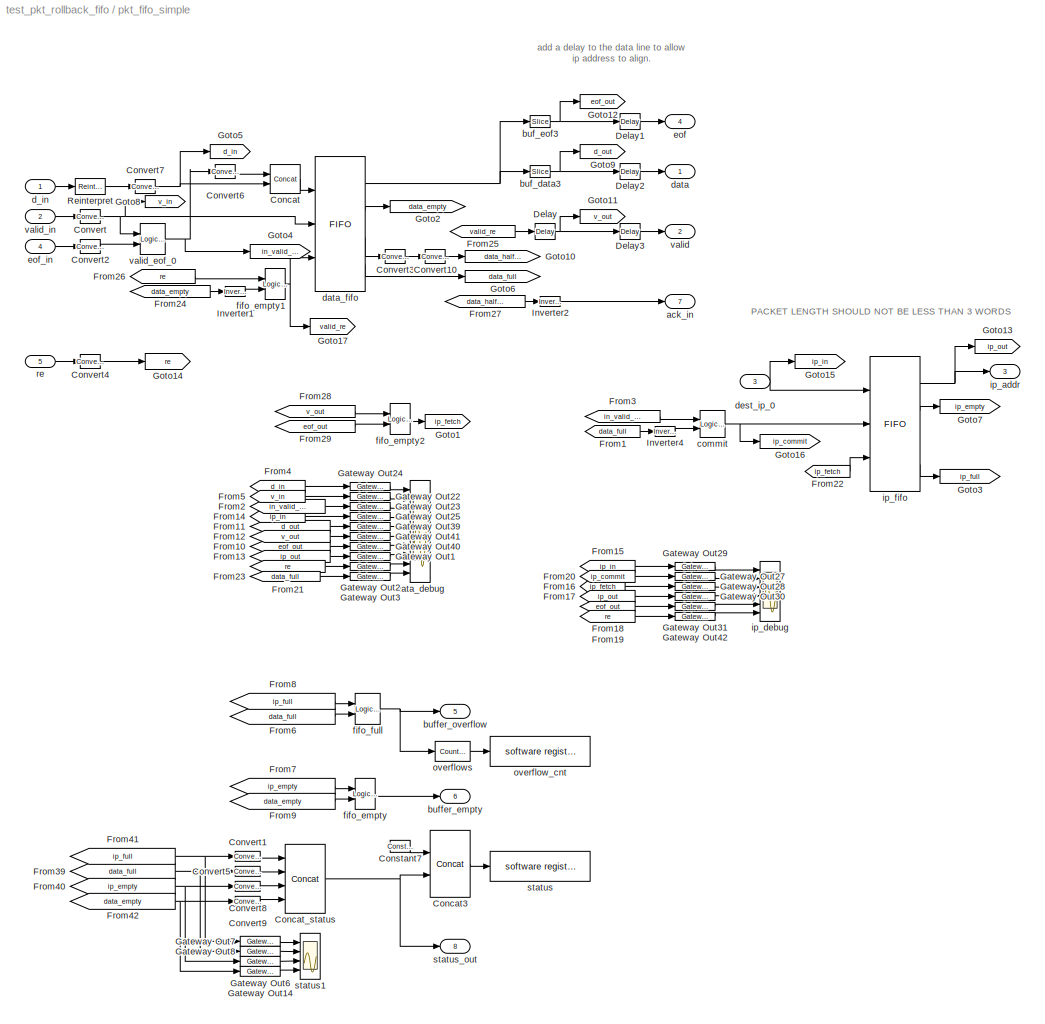
BLOCK [SubSystem] pkt_fifo_simple
  AttributesFormatString = Max 1024 data words.\nMax 32 pkts.
  FunctionWithSeparateData = off
  MinAlgLoopOccurrences = off
  Ports = [5, 8]
  RTWSystemCode = Auto
BLOCK [Reference] pkt_fifo_simple/Concat  REF=xbsIndex_r4/Concat
  Ports = [2, 1]
  SourceBlock = xbsIndex_r4/Concat
  SourceType = Xilinx Bus Concatenator Block
  block_type = concat
  block_version = 10.1.3
  dbl_ovrd = off
  has_advanced_control = 0
  infoedit = Concatenates two or more inputs.  Output will be cast to an unsigned value with the binary point at zero.
  num_inputs = 2
  sg_icon_stat = 30,29,2,1,white,blue,0,df1e5aba,right
  sggui_pos = -1,-1,-1,-1
BLOCK [Reference] pkt_fifo_simple/Concat3  REF=xbsIndex_r4/Concat
  Ports = [2, 1]
  SourceBlock = xbsIndex_r4/Concat
  SourceType = Xilinx Bus Concatenator Block
  block_type = concat
  block_version = 10.1.3
  dbl_ovrd = off
  has_advanced_control = 0
  infoedit = Concatenates two or more inputs.  Output will be cast to an unsigned value with the binary point at zero.
  num_inputs = 2
  sg_icon_stat = 40,67,2,1,white,blue,0,df1e5aba,right
  sggui_pos = -1,-1,-1,-1
BLOCK [Reference] pkt_fifo_simple/Concat_status  REF=xbsIndex_r4/Concat
  Ports = [4, 1]
  SourceBlock = xbsIndex_r4/Concat
  SourceType = Xilinx Bus Concatenator Block
  block_type = concat
  block_version = 10.1.3
  dbl_ovrd = off
  has_advanced_control = 0
  infoedit = Concatenates two or more inputs.  Output will be cast to an unsigned value with the binary point at zero.
  num_inputs = 4
  sg_icon_stat = 40,69,4,1,white,blue,0,ad63c393,right
  sggui_pos = -1,-1,-1,-1
BLOCK [Reference] pkt_fifo_simple/Constant7  REF=xbsIndex_r4/Constant
  Ports = [0, 1]
  SourceBlock = xbsIndex_r4/Constant
  SourceType = Xilinx Constant Block Block
  arith_type = Unsigned
  bin_pt = 0
  block_type = constant
  block_version = 10.1.3
  carry = CIN
  const = 0
  dbl_ovrd = off
  dsp48_infoedit = The use of this block for DSP48 instructions is deprecated.  Please use the Opmode block.
  equ = P=C
  explicit_period = on
  has_advanced_control = 0
  inp1 = P
  inp2 = PCIN>>17
  n_bits = 32-9
  opr = +
  opselect = C
  period = 1
  sg_icon_stat = 20,12,0,1,white,blue,0,72d575a1,right
  sggui_pos = -1,-1,-1,-1
BLOCK [Reference] pkt_fifo_simple/Convert  REF=xbsIndex_r4/Convert
  Ports = [1, 1]
  SourceBlock = xbsIndex_r4/Convert
  SourceType = Xilinx Type Converter Block
  arith_type = Boolean
  bin_pt = 6
  block_type = convert
  block_version = 10.1.3
  dbl_ovrd = off
  has_advanced_control = 0
  infoedit = Hardware notes: rounding and saturating require hardware resources; truncating and wrapping do not.
  latency = 0
  n_bits = 8
  overflow = Wrap
  pipeline = off
  quantization = Truncate
  sg_icon_stat = 20,14,1,1,white,blue,0,74901e60,right
  sggui_pos = -1,-1,-1,-1
  xl_area = [0, 0, 0, 0, 0, 0, 0]
  xl_use_area = off
BLOCK [Reference] pkt_fifo_simple/Convert1  REF=xbsIndex_r4/Convert
  Ports = [1, 1]
  SourceBlock = xbsIndex_r4/Convert
  SourceType = Xilinx Type Converter Block
  arith_type = Unsigned
  bin_pt = 0
  block_type = convert
  block_version = 10.1.3
  dbl_ovrd = off
  has_advanced_control = 0
  infoedit = Hardware notes: rounding and saturating require hardware resources; truncating and wrapping do not.
  latency = 0
  n_bits = 1
  overflow = Wrap
  pipeline = off
  quantization = Truncate
  sg_icon_stat = 25,10,1,1,white,blue,0,74901e60,right
  sggui_pos = -1,-1,-1,-1
  xl_area = [0, 0, 0, 0, 0, 0, 0]
  xl_use_area = off
BLOCK [Reference] pkt_fifo_simple/Convert10  REF=xbsIndex_r4/Convert
  Ports = [1, 1]
  SourceBlock = xbsIndex_r4/Convert
  SourceType = Xilinx Type Converter Block
  arith_type = Boolean
  bin_pt = 0
  block_type = convert
  block_version = 10.1.3
  dbl_ovrd = off
  has_advanced_control = 0
  infoedit = Hardware notes: rounding and saturating require hardware resources; truncating and wrapping do not.
  latency = 0
  n_bits = 1
  overflow = Wrap
  pipeline = off
  quantization = Truncate
  sg_icon_stat = 20,14,1,1,white,blue,0,74901e60,right
  sggui_pos = 20,20,461,334
  xl_area = [0, 0, 0, 0, 0, 0, 0]
  xl_use_area = off
BLOCK [Reference] pkt_fifo_simple/Convert2  REF=xbsIndex_r4/Convert
  Ports = [1, 1]
  SourceBlock = xbsIndex_r4/Convert
  SourceType = Xilinx Type Converter Block
  arith_type = Boolean
  bin_pt = 6
  block_type = convert
  block_version = 10.1.3
  dbl_ovrd = off
  has_advanced_control = 0
  infoedit = Hardware notes: rounding and saturating require hardware resources; truncating and wrapping do not.
  latency = 0
  n_bits = 8
  overflow = Wrap
  pipeline = off
  quantization = Truncate
  sg_icon_stat = 20,14,1,1,white,blue,0,74901e60,right
  sggui_pos = 20,20,461,334
  xl_area = [0, 0, 0, 0, 0, 0, 0]
  xl_use_area = off
BLOCK [Reference] pkt_fifo_simple/Convert3  REF=xbsIndex_r4/Convert
  Ports = [1, 1]
  SourceBlock = xbsIndex_r4/Convert
  SourceType = Xilinx Type Converter Block
  arith_type = Unsigned
  bin_pt = 0
  block_type = convert
  block_version = 10.1.3
  dbl_ovrd = off
  has_advanced_control = 0
  infoedit = Hardware notes: rounding and saturating require hardware resources; truncating and wrapping do not.
  latency = 0
  n_bits = 1
  overflow = Wrap
  pipeline = off
  quantization = Truncate
  sg_icon_stat = 20,14,1,1,white,blue,0,74901e60,right
  sggui_pos = 20,20,461,334
  xl_area = [0, 0, 0, 0, 0, 0, 0]
  xl_use_area = off
BLOCK [Reference] pkt_fifo_simple/Convert4  REF=xbsIndex_r4/Convert
  Ports = [1, 1]
  SourceBlock = xbsIndex_r4/Convert
  SourceType = Xilinx Type Converter Block
  arith_type = Boolean
  bin_pt = 6
  block_type = convert
  block_version = 10.1.3
  dbl_ovrd = off
  has_advanced_control = 0
  infoedit = Hardware notes: rounding and saturating require hardware resources; truncating and wrapping do not.
  latency = 0
  n_bits = 8
  overflow = Wrap
  pipeline = off
  quantization = Truncate
  sg_icon_stat = 20,14,1,1,white,blue,0,74901e60,right
  sggui_pos = -1,-1,-1,-1
  xl_area = [0, 0, 0, 0, 0, 0, 0]
  xl_use_area = off
BLOCK [Reference] pkt_fifo_simple/Convert5  REF=xbsIndex_r4/Convert
  Ports = [1, 1]
  SourceBlock = xbsIndex_r4/Convert
  SourceType = Xilinx Type Converter Block
  arith_type = Unsigned
  bin_pt = 0
  block_type = convert
  block_version = 10.1.3
  dbl_ovrd = off
  has_advanced_control = 0
  infoedit = Hardware notes: rounding and saturating require hardware resources; truncating and wrapping do not.
  latency = 0
  n_bits = 1
  overflow = Wrap
  pipeline = off
  quantization = Truncate
  sg_icon_stat = 25,10,1,1,white,blue,0,74901e60,right
  sggui_pos = -1,-1,-1,-1
  xl_area = [0, 0, 0, 0, 0, 0, 0]
  xl_use_area = off
BLOCK [Reference] pkt_fifo_simple/Convert6  REF=xbsIndex_r4/Convert
  Ports = [1, 1]
  SourceBlock = xbsIndex_r4/Convert
  SourceType = Xilinx Type Converter Block
  arith_type = Unsigned
  bin_pt = 0
  block_type = convert
  block_version = 10.1.3
  dbl_ovrd = off
  has_advanced_control = 0
  infoedit = Hardware notes: rounding and saturating require hardware resources; truncating and wrapping do not.
  latency = 0
  n_bits = 1
  overflow = Wrap
  pipeline = off
  quantization = Truncate
  sg_icon_stat = 20,14,1,1,white,blue,0,74901e60,right
  sggui_pos = 20,20,461,334
  xl_area = [0, 0, 0, 0, 0, 0, 0]
  xl_use_area = off
BLOCK [Reference] pkt_fifo_simple/Convert7  REF=xbsIndex_r4/Convert
  Ports = [1, 1]
  SourceBlock = xbsIndex_r4/Convert
  SourceType = Xilinx Type Converter Block
  arith_type = Unsigned
  bin_pt = 0
  block_type = convert
  block_version = 10.1.3
  dbl_ovrd = off
  has_advanced_control = 0
  infoedit = Hardware notes: rounding and saturating require hardware resources; truncating and wrapping do not.
  latency = 0
  n_bits = 64
  overflow = Wrap
  pipeline = off
  quantization = Truncate
  sg_icon_stat = 20,14,1,1,white,blue,0,74901e60,right
  sggui_pos = 20,20,461,334
  xl_area = [0, 0, 0, 0, 0, 0, 0]
  xl_use_area = off
BLOCK [Reference] pkt_fifo_simple/Convert8  REF=xbsIndex_r4/Convert
  Ports = [1, 1]
  SourceBlock = xbsIndex_r4/Convert
  SourceType = Xilinx Type Converter Block
  arith_type = Unsigned
  bin_pt = 0
  block_type = convert
  block_version = 10.1.3
  dbl_ovrd = off
  has_advanced_control = 0
  infoedit = Hardware notes: rounding and saturating require hardware resources; truncating and wrapping do not.
  latency = 0
  n_bits = 1
  overflow = Wrap
  pipeline = off
  quantization = Truncate
  sg_icon_stat = 25,10,1,1,white,blue,0,74901e60,right
  sggui_pos = -1,-1,-1,-1
  xl_area = [0, 0, 0, 0, 0, 0, 0]
  xl_use_area = off
BLOCK [Reference] pkt_fifo_simple/Convert9  REF=xbsIndex_r4/Convert
  Ports = [1, 1]
  SourceBlock = xbsIndex_r4/Convert
  SourceType = Xilinx Type Converter Block
  arith_type = Unsigned
  bin_pt = 0
  block_type = convert
  block_version = 10.1.3
  dbl_ovrd = off
  has_advanced_control = 0
  infoedit = Hardware notes: rounding and saturating require hardware resources; truncating and wrapping do not.
  latency = 0
  n_bits = 1
  overflow = Wrap
  pipeline = off
  quantization = Truncate
  sg_icon_stat = 25,10,1,1,white,blue,0,74901e60,right
  sggui_pos = -1,-1,-1,-1
  xl_area = [0, 0, 0, 0, 0, 0, 0]
  xl_use_area = off
BLOCK [Reference] pkt_fifo_simple/Delay  REF=xbsIndex_r4/Delay
  Ports = [1, 1]
  SourceBlock = xbsIndex_r4/Delay
  SourceType = Xilinx Delay Block
  block_type = delay
  block_version = 10.1.3
  dbl_ovrd = off
  en = off
  has_advanced_control = 0
  infoedit = Hardware notes: A delay line is a chain, each link of which is an SRL16 followed by a flip-flop.
  latency = 1
  reg_retiming = off
  sg_icon_stat = 20,16,1,1,white,blue,0,fc531c0e,right
  sggui_pos = -1,-1,-1,-1
  xl_area = [0,0,0,0,0,0,0]
  xl_use_area = off
BLOCK [Reference] pkt_fifo_simple/Delay1  REF=xbsIndex_r4/Delay
  Ports = [1, 1]
  SourceBlock = xbsIndex_r4/Delay
  SourceType = Xilinx Delay Block
  block_type = delay
  block_version = 10.1.3
  dbl_ovrd = off
  en = off
  has_advanced_control = 0
  infoedit = Hardware notes: A delay line is a chain, each link of which is an SRL16 followed by a flip-flop.
  latency = 1
  reg_retiming = off
  sg_icon_stat = 20,16,1,1,white,blue,0,fc531c0e,right
  sggui_pos = -1,-1,-1,-1
  xl_area = [0,0,0,0,0,0,0]
  xl_use_area = off
BLOCK [Reference] pkt_fifo_simple/Delay2  REF=xbsIndex_r4/Delay
  Ports = [1, 1]
  SourceBlock = xbsIndex_r4/Delay
  SourceType = Xilinx Delay Block
  block_type = delay
  block_version = 10.1.3
  dbl_ovrd = off
  en = off
  has_advanced_control = 0
  infoedit = Hardware notes: A delay line is a chain, each link of which is an SRL16 followed by a flip-flop.
  latency = 1
  reg_retiming = off
  sg_icon_stat = 20,16,1,1,white,blue,0,fc531c0e,right
  sggui_pos = -1,-1,-1,-1
  xl_area = [0,0,0,0,0,0,0]
  xl_use_area = off
BLOCK [Reference] pkt_fifo_simple/Delay3  REF=xbsIndex_r4/Delay
  Ports = [1, 1]
  SourceBlock = xbsIndex_r4/Delay
  SourceType = Xilinx Delay Block
  block_type = delay
  block_version = 10.1.3
  dbl_ovrd = off
  en = off
  has_advanced_control = 0
  infoedit = Hardware notes: A delay line is a chain, each link of which is an SRL16 followed by a flip-flop.
  latency = 1
  reg_retiming = off
  sg_icon_stat = 20,16,1,1,white,blue,0,fc531c0e,right
  sggui_pos = -1,-1,-1,-1
  xl_area = [0,0,0,0,0,0,0]
  xl_use_area = off
BLOCK [From] pkt_fifo_simple/From1
  CloseFcn = tagdialog Close
  GotoTag = data_full
BLOCK [From] pkt_fifo_simple/From10
  CloseFcn = tagdialog Close
  GotoTag = eof_out
BLOCK [From] pkt_fifo_simple/From11
  CloseFcn = tagdialog Close
  GotoTag = d_out
BLOCK [From] pkt_fifo_simple/From12
  CloseFcn = tagdialog Close
  GotoTag = v_out
BLOCK [From] pkt_fifo_simple/From13
  CloseFcn = tagdialog Close
  GotoTag = ip_out
BLOCK [From] pkt_fifo_simple/From14
  CloseFcn = tagdialog Close
  GotoTag = ip_in
BLOCK [From] pkt_fifo_simple/From15
  CloseFcn = tagdialog Close
  GotoTag = ip_in
BLOCK [From] pkt_fifo_simple/From16
  CloseFcn = tagdialog Close
  GotoTag = ip_fetch
BLOCK [From] pkt_fifo_simple/From17
  CloseFcn = tagdialog Close
  GotoTag = ip_out
BLOCK [From] pkt_fifo_simple/From18
  CloseFcn = tagdialog Close
  GotoTag = eof_out
BLOCK [From] pkt_fifo_simple/From19
  CloseFcn = tagdialog Close
  GotoTag = re
BLOCK [From] pkt_fifo_simple/From2
  CloseFcn = tagdialog Close
  GotoTag = in_valid_eof
BLOCK [From] pkt_fifo_simple/From20
  CloseFcn = tagdialog Close
  GotoTag = ip_commit
BLOCK [From] pkt_fifo_simple/From21
  CloseFcn = tagdialog Close
  GotoTag = re
BLOCK [From] pkt_fifo_simple/From22
  CloseFcn = tagdialog Close
  GotoTag = ip_fetch
BLOCK [From] pkt_fifo_simple/From23
  CloseFcn = tagdialog Close
  GotoTag = data_full
BLOCK [From] pkt_fifo_simple/From24
  CloseFcn = tagdialog Close
  GotoTag = data_empty
BLOCK [From] pkt_fifo_simple/From25
  CloseFcn = tagdialog Close
  GotoTag = valid_re
BLOCK [From] pkt_fifo_simple/From26
  CloseFcn = tagdialog Close
  GotoTag = re
BLOCK [From] pkt_fifo_simple/From27
  CloseFcn = tagdialog Close
  GotoTag = data_half_full
BLOCK [From] pkt_fifo_simple/From28
  CloseFcn = tagdialog Close
  GotoTag = v_out
BLOCK [From] pkt_fifo_simple/From29
  CloseFcn = tagdialog Close
  GotoTag = eof_out
BLOCK [From] pkt_fifo_simple/From3
  CloseFcn = tagdialog Close
  GotoTag = in_valid_eof
BLOCK [From] pkt_fifo_simple/From39
  CloseFcn = tagdialog Close
  GotoTag = data_full
BLOCK [From] pkt_fifo_simple/From4
  CloseFcn = tagdialog Close
  GotoTag = d_in
BLOCK [From] pkt_fifo_simple/From40
  CloseFcn = tagdialog Close
  GotoTag = ip_empty
BLOCK [From] pkt_fifo_simple/From41
  CloseFcn = tagdialog Close
  GotoTag = ip_full
BLOCK [From] pkt_fifo_simple/From42
  CloseFcn = tagdialog Close
  GotoTag = data_empty
BLOCK [From] pkt_fifo_simple/From5
  CloseFcn = tagdialog Close
  GotoTag = v_in
BLOCK [From] pkt_fifo_simple/From6
  CloseFcn = tagdialog Close
  GotoTag = data_full
BLOCK [From] pkt_fifo_simple/From7
  CloseFcn = tagdialog Close
  GotoTag = ip_empty
BLOCK [From] pkt_fifo_simple/From8
  CloseFcn = tagdialog Close
  GotoTag = ip_full
BLOCK [From] pkt_fifo_simple/From9
  CloseFcn = tagdialog Close
  GotoTag = data_empty
BLOCK [Reference] pkt_fifo_simple/Gateway Out1  REF=xbsIndex_r4/Gateway Out
  LOCs = {}
  Ports = [1, 1]
  SourceBlock = xbsIndex_r4/Gateway Out
  SourceType = Xilinx Gateway Out Block
  block_type = gatewayout
  block_version = 10.1.3
  has_advanced_control = 0
  hdl_port = on
  locs_specified = off
  sg_icon_stat = 40,8,1,1,white,yellow,0,38220381,right
  sg_mask_display = fprintf('','COMMENT: begin icon graphics');\npatch([0 40 40 0 ],[0 0 8 8 ],[0.95 0.93 0.65]);\npatch([18 17 19 17 18 20 21 22 24 22 20 19 21 19 20 22 24 22 21 20 18 ],[1 2 4 6 7 7 6 7 7 5 7 6 4 2 1 3 1 1 2 1 1 ],[0.98 0.96 0.92]);\nplot([0 40 40 0 0 ],[0 0 8 8 0 ]);\nfprintf('','COMMENT: end icon graphics');\nfprintf('','COMMENT: begin icon text');\ncolor('black');port_label('input',1,' ');\ncolor...<+117ch>  <repeated x16 — deduplicated; at blocks: Gateway Out1, Gateway Out2, Gateway Out22, Gateway Out23, Gateway Out24, Gateway Out25, Gateway Out27, Gateway Out28, Gateway Out29, Gateway Out3, Gateway Out30, Gateway Out31, Gateway Out39, Gateway Out40, Gateway Out41, Gateway Out42>
  sggui_pos = -1,-1,-1,-1
  timing_constraint = None
  xl_area = [0, 0, 0, 0, 0, 0, 0]
  xl_use_area = off
BLOCK [Reference] pkt_fifo_simple/Gateway Out14  REF=xbsIndex_r4/Gateway Out
  LOCs = {}
  Ports = [1, 1]
  SourceBlock = xbsIndex_r4/Gateway Out
  SourceType = Xilinx Gateway Out Block
  block_type = gatewayout
  block_version = 10.1.3
  has_advanced_control = 0
  hdl_port = on
  locs_specified = off
  sg_icon_stat = 40,10,1,1,white,yellow,0,38220381,right
  sg_mask_display = fprintf('','COMMENT: begin icon graphics');\npatch([0 40 40 0 ],[0 0 10 10 ],[0.95 0.93 0.65]);\npatch([18 16 18 16 18 21 22 23 26 24 22 20 22 20 22 24 26 23 22 21 18 ],[1 3 5 7 9 9 8 9 9 7 9 7 5 3 1 3 1 1 2 1 1 ],[0.98 0.96 0.92]);\nplot([0 40 40 0 0 ],[0 0 10 10 0 ]);\nfprintf('','COMMENT: end icon graphics');\nfprintf('','COMMENT: begin icon text');\ncolor('black');port_label('input',1,' ');\nc...<+121ch>  <repeated x4 — deduplicated; at blocks: Gateway Out14, Gateway Out6, Gateway Out7, Gateway Out8>
  sggui_pos = -1,-1,-1,-1
  timing_constraint = None
  xl_area = [0, 0, 0, 0, 0, 0, 0]
  xl_use_area = off
BLOCK [Reference] pkt_fifo_simple/Gateway Out2  REF=xbsIndex_r4/Gateway Out
  LOCs = {}
  Ports = [1, 1]
  SourceBlock = xbsIndex_r4/Gateway Out
  SourceType = Xilinx Gateway Out Block
  block_type = gatewayout
  block_version = 10.1.3
  has_advanced_control = 0
  hdl_port = on
  locs_specified = off
  sg_icon_stat = 40,8,1,1,white,yellow,0,38220381,right
  sggui_pos = -1,-1,-1,-1
  timing_constraint = None
  xl_area = [0, 0, 0, 0, 0, 0, 0]
  xl_use_area = off
BLOCK [Reference] pkt_fifo_simple/Gateway Out22  REF=xbsIndex_r4/Gateway Out
  LOCs = {}
  Ports = [1, 1]
  SourceBlock = xbsIndex_r4/Gateway Out
  SourceType = Xilinx Gateway Out Block
  block_type = gatewayout
  block_version = 10.1.3
  has_advanced_control = 0
  hdl_port = on
  locs_specified = off
  sg_icon_stat = 40,8,1,1,white,yellow,0,38220381,right
  sggui_pos = -1,-1,-1,-1
  timing_constraint = None
  xl_area = [0, 0, 0, 0, 0, 0, 0]
  xl_use_area = off
BLOCK [Reference] pkt_fifo_simple/Gateway Out23  REF=xbsIndex_r4/Gateway Out
  LOCs = {}
  Ports = [1, 1]
  SourceBlock = xbsIndex_r4/Gateway Out
  SourceType = Xilinx Gateway Out Block
  block_type = gatewayout
  block_version = 10.1.3
  has_advanced_control = 0
  hdl_port = on
  locs_specified = off
  sg_icon_stat = 40,8,1,1,white,yellow,0,38220381,right
  sggui_pos = -1,-1,-1,-1
  timing_constraint = None
  xl_area = [0, 0, 0, 0, 0, 0, 0]
  xl_use_area = off
BLOCK [Reference] pkt_fifo_simple/Gateway Out24  REF=xbsIndex_r4/Gateway Out
  LOCs = {}
  Ports = [1, 1]
  SourceBlock = xbsIndex_r4/Gateway Out
  SourceType = Xilinx Gateway Out Block
  block_type = gatewayout
  block_version = 10.1.3
  has_advanced_control = 0
  hdl_port = on
  locs_specified = off
  sg_icon_stat = 40,8,1,1,white,yellow,0,38220381,right
  sggui_pos = -1,-1,-1,-1
  timing_constraint = None
  xl_area = [0, 0, 0, 0, 0, 0, 0]
  xl_use_area = off
BLOCK [Reference] pkt_fifo_simple/Gateway Out25  REF=xbsIndex_r4/Gateway Out
  LOCs = {}
  Ports = [1, 1]
  SourceBlock = xbsIndex_r4/Gateway Out
  SourceType = Xilinx Gateway Out Block
  block_type = gatewayout
  block_version = 10.1.3
  has_advanced_control = 0
  hdl_port = on
  locs_specified = off
  sg_icon_stat = 40,8,1,1,white,yellow,0,38220381,right
  sggui_pos = -1,-1,-1,-1
  timing_constraint = None
  xl_area = [0, 0, 0, 0, 0, 0, 0]
  xl_use_area = off
BLOCK [Reference] pkt_fifo_simple/Gateway Out27  REF=xbsIndex_r4/Gateway Out
  LOCs = {}
  Ports = [1, 1]
  SourceBlock = xbsIndex_r4/Gateway Out
  SourceType = Xilinx Gateway Out Block
  block_type = gatewayout
  block_version = 10.1.3
  has_advanced_control = 0
  hdl_port = on
  locs_specified = off
  sg_icon_stat = 40,8,1,1,white,yellow,0,38220381,right
  sggui_pos = -1,-1,-1,-1
  timing_constraint = None
  xl_area = [0, 0, 0, 0, 0, 0, 0]
  xl_use_area = off
BLOCK [Reference] pkt_fifo_simple/Gateway Out28  REF=xbsIndex_r4/Gateway Out
  LOCs = {}
  Ports = [1, 1]
  SourceBlock = xbsIndex_r4/Gateway Out
  SourceType = Xilinx Gateway Out Block
  block_type = gatewayout
  block_version = 10.1.3
  has_advanced_control = 0
  hdl_port = on
  locs_specified = off
  sg_icon_stat = 40,8,1,1,white,yellow,0,38220381,right
  sggui_pos = -1,-1,-1,-1
  timing_constraint = None
  xl_area = [0, 0, 0, 0, 0, 0, 0]
  xl_use_area = off
BLOCK [Reference] pkt_fifo_simple/Gateway Out29  REF=xbsIndex_r4/Gateway Out
  LOCs = {}
  Ports = [1, 1]
  SourceBlock = xbsIndex_r4/Gateway Out
  SourceType = Xilinx Gateway Out Block
  block_type = gatewayout
  block_version = 10.1.3
  has_advanced_control = 0
  hdl_port = on
  locs_specified = off
  sg_icon_stat = 40,8,1,1,white,yellow,0,38220381,right
  sggui_pos = -1,-1,-1,-1
  timing_constraint = None
  xl_area = [0, 0, 0, 0, 0, 0, 0]
  xl_use_area = off
BLOCK [Reference] pkt_fifo_simple/Gateway Out3  REF=xbsIndex_r4/Gateway Out
  LOCs = {}
  Ports = [1, 1]
  SourceBlock = xbsIndex_r4/Gateway Out
  SourceType = Xilinx Gateway Out Block
  block_type = gatewayout
  block_version = 10.1.3
  has_advanced_control = 0
  hdl_port = on
  locs_specified = off
  sg_icon_stat = 40,8,1,1,white,yellow,0,38220381,right
  sggui_pos = -1,-1,-1,-1
  timing_constraint = None
  xl_area = [0, 0, 0, 0, 0, 0, 0]
  xl_use_area = off
BLOCK [Reference] pkt_fifo_simple/Gateway Out30  REF=xbsIndex_r4/Gateway Out
  LOCs = {}
  Ports = [1, 1]
  SourceBlock = xbsIndex_r4/Gateway Out
  SourceType = Xilinx Gateway Out Block
  block_type = gatewayout
  block_version = 10.1.3
  has_advanced_control = 0
  hdl_port = on
  locs_specified = off
  sg_icon_stat = 40,8,1,1,white,yellow,0,38220381,right
  sggui_pos = -1,-1,-1,-1
  timing_constraint = None
  xl_area = [0, 0, 0, 0, 0, 0, 0]
  xl_use_area = off
BLOCK [Reference] pkt_fifo_simple/Gateway Out31  REF=xbsIndex_r4/Gateway Out
  LOCs = {}
  Ports = [1, 1]
  SourceBlock = xbsIndex_r4/Gateway Out
  SourceType = Xilinx Gateway Out Block
  block_type = gatewayout
  block_version = 10.1.3
  has_advanced_control = 0
  hdl_port = on
  locs_specified = off
  sg_icon_stat = 40,8,1,1,white,yellow,0,38220381,right
  sggui_pos = -1,-1,-1,-1
  timing_constraint = None
  xl_area = [0, 0, 0, 0, 0, 0, 0]
  xl_use_area = off
BLOCK [Reference] pkt_fifo_simple/Gateway Out39  REF=xbsIndex_r4/Gateway Out
  LOCs = {}
  Ports = [1, 1]
  SourceBlock = xbsIndex_r4/Gateway Out
  SourceType = Xilinx Gateway Out Block
  block_type = gatewayout
  block_version = 10.1.3
  has_advanced_control = 0
  hdl_port = on
  locs_specified = off
  sg_icon_stat = 40,8,1,1,white,yellow,0,38220381,right
  sggui_pos = -1,-1,-1,-1
  timing_constraint = None
  xl_area = [0, 0, 0, 0, 0, 0, 0]
  xl_use_area = off
BLOCK [Reference] pkt_fifo_simple/Gateway Out40  REF=xbsIndex_r4/Gateway Out
  LOCs = {}
  Ports = [1, 1]
  SourceBlock = xbsIndex_r4/Gateway Out
  SourceType = Xilinx Gateway Out Block
  block_type = gatewayout
  block_version = 10.1.3
  has_advanced_control = 0
  hdl_port = on
  locs_specified = off
  sg_icon_stat = 40,8,1,1,white,yellow,0,38220381,right
  sggui_pos = -1,-1,-1,-1
  timing_constraint = None
  xl_area = [0, 0, 0, 0, 0, 0, 0]
  xl_use_area = off
BLOCK [Reference] pkt_fifo_simple/Gateway Out41  REF=xbsIndex_r4/Gateway Out
  LOCs = {}
  Ports = [1, 1]
  SourceBlock = xbsIndex_r4/Gateway Out
  SourceType = Xilinx Gateway Out Block
  block_type = gatewayout
  block_version = 10.1.3
  has_advanced_control = 0
  hdl_port = on
  locs_specified = off
  sg_icon_stat = 40,8,1,1,white,yellow,0,38220381,right
  sggui_pos = -1,-1,-1,-1
  timing_constraint = None
  xl_area = [0, 0, 0, 0, 0, 0, 0]
  xl_use_area = off
BLOCK [Reference] pkt_fifo_simple/Gateway Out42  REF=xbsIndex_r4/Gateway Out
  LOCs = {}
  Ports = [1, 1]
  SourceBlock = xbsIndex_r4/Gateway Out
  SourceType = Xilinx Gateway Out Block
  block_type = gatewayout
  block_version = 10.1.3
  has_advanced_control = 0
  hdl_port = on
  locs_specified = off
  sg_icon_stat = 40,8,1,1,white,yellow,0,38220381,right
  sggui_pos = -1,-1,-1,-1
  timing_constraint = None
  xl_area = [0, 0, 0, 0, 0, 0, 0]
  xl_use_area = off
BLOCK [Reference] pkt_fifo_simple/Gateway Out6  REF=xbsIndex_r4/Gateway Out
  LOCs = {}
  Ports = [1, 1]
  SourceBlock = xbsIndex_r4/Gateway Out
  SourceType = Xilinx Gateway Out Block
  block_type = gatewayout
  block_version = 10.1.3
  has_advanced_control = 0
  hdl_port = on
  locs_specified = off
  sg_icon_stat = 40,10,1,1,white,yellow,0,38220381,right
  sggui_pos = -1,-1,-1,-1
  timing_constraint = None
  xl_area = [0, 0, 0, 0, 0, 0, 0]
  xl_use_area = off
BLOCK [Reference] pkt_fifo_simple/Gateway Out7  REF=xbsIndex_r4/Gateway Out
  LOCs = {}
  Ports = [1, 1]
  SourceBlock = xbsIndex_r4/Gateway Out
  SourceType = Xilinx Gateway Out Block
  block_type = gatewayout
  block_version = 10.1.3
  has_advanced_control = 0
  hdl_port = on
  locs_specified = off
  sg_icon_stat = 40,10,1,1,white,yellow,0,38220381,right
  sggui_pos = -1,-1,-1,-1
  timing_constraint = None
  xl_area = [0, 0, 0, 0, 0, 0, 0]
  xl_use_area = off
BLOCK [Reference] pkt_fifo_simple/Gateway Out8  REF=xbsIndex_r4/Gateway Out
  LOCs = {}
  Ports = [1, 1]
  SourceBlock = xbsIndex_r4/Gateway Out
  SourceType = Xilinx Gateway Out Block
  block_type = gatewayout
  block_version = 10.1.3
  has_advanced_control = 0
  hdl_port = on
  locs_specified = off
  sg_icon_stat = 40,10,1,1,white,yellow,0,38220381,right
  sggui_pos = -1,-1,-1,-1
  timing_constraint = None
  xl_area = [0, 0, 0, 0, 0, 0, 0]
  xl_use_area = off
BLOCK [Goto] pkt_fifo_simple/Goto1
  GotoTag = ip_fetch
  TagVisibility = local
BLOCK [Goto] pkt_fifo_simple/Goto10
  GotoTag = data_half_full
  TagVisibility = local
BLOCK [Goto] pkt_fifo_simple/Goto11
  GotoTag = v_out
  TagVisibility = local
BLOCK [Goto] pkt_fifo_simple/Goto12
  GotoTag = eof_out
  TagVisibility = local
BLOCK [Goto] pkt_fifo_simple/Goto13
  GotoTag = ip_out
  TagVisibility = local
BLOCK [Goto] pkt_fifo_simple/Goto14
  GotoTag = re
  TagVisibility = local
BLOCK [Goto] pkt_fifo_simple/Goto15
  GotoTag = ip_in
  TagVisibility = local
BLOCK [Goto] pkt_fifo_simple/Goto16
  GotoTag = ip_commit
  TagVisibility = local
BLOCK [Goto] pkt_fifo_simple/Goto17
  GotoTag = valid_re
  TagVisibility = local
BLOCK [Goto] pkt_fifo_simple/Goto2
  GotoTag = data_empty
  TagVisibility = local
BLOCK [Goto] pkt_fifo_simple/Goto3
  GotoTag = ip_full
  TagVisibility = local
BLOCK [Goto] pkt_fifo_simple/Goto4
  GotoTag = in_valid_eof
  TagVisibility = local
BLOCK [Goto] pkt_fifo_simple/Goto5
  GotoTag = d_in
  TagVisibility = local
BLOCK [Goto] pkt_fifo_simple/Goto6
  GotoTag = data_full
  TagVisibility = local
BLOCK [Goto] pkt_fifo_simple/Goto7
  GotoTag = ip_empty
  TagVisibility = local
BLOCK [Goto] pkt_fifo_simple/Goto8
  GotoTag = v_in
  TagVisibility = local
BLOCK [Goto] pkt_fifo_simple/Goto9
  GotoTag = d_out
  TagVisibility = local
BLOCK [Reference] pkt_fifo_simple/Inverter1  REF=xbsIndex_r4/Inverter
  Ports = [1, 1]
  SourceBlock = xbsIndex_r4/Inverter
  SourceType = Xilinx Inverter Block
  block_type = inv
  block_version = 10.1.3
  dbl_ovrd = off
  en = off
  has_advanced_control = 0
  infoedit = Bitwise logical negation (one's complement) operator.
  latency = 0
  sg_icon_stat = 20,10,1,1,white,blue,0,1ab4a85f,right
  sggui_pos = -1,-1,-1,-1
  xl_area = [0, 0, 0, 0, 0, 0, 0]
  xl_use_area = off
BLOCK [Reference] pkt_fifo_simple/Inverter2  REF=xbsIndex_r4/Inverter
  Ports = [1, 1]
  SourceBlock = xbsIndex_r4/Inverter
  SourceType = Xilinx Inverter Block
  block_type = inv
  block_version = 10.1.3
  dbl_ovrd = off
  en = off
  has_advanced_control = 0
  infoedit = Bitwise logical negation (one's complement) operator.
  latency = 0
  sg_icon_stat = 20,10,1,1,white,blue,0,1ab4a85f,right
  sggui_pos = 20,20,348,251
  xl_area = [0, 0, 0, 0, 0, 0, 0]
  xl_use_area = off
BLOCK [Reference] pkt_fifo_simple/Inverter4  REF=xbsIndex_r4/Inverter
  Ports = [1, 1]
  SourceBlock = xbsIndex_r4/Inverter
  SourceType = Xilinx Inverter Block
  block_type = inv
  block_version = 10.1.3
  dbl_ovrd = off
  en = off
  has_advanced_control = 0
  infoedit = Bitwise logical negation (one's complement) operator.
  latency = 0
  sg_icon_stat = 20,10,1,1,white,blue,0,1ab4a85f,right
  sggui_pos = -1,-1,-1,-1
  xl_area = [0, 0, 0, 0, 0, 0, 0]
  xl_use_area = off
BLOCK [Reference] pkt_fifo_simple/Reinterpret  REF=xbsIndex_r4/Reinterpret
  Ports = [1, 1]
  SourceBlock = xbsIndex_r4/Reinterpret
  SourceType = Xilinx Type Reinterpreter Block
  arith_type = Unsigned
  bin_pt = 0
  block_type = reinterpret
  block_version = 10.1.3
  force_arith_type = on
  force_bin_pt = on
  has_advanced_control = 0
  infoedit = Changes signal type without altering the binary representation.   You can changed the signal between signed and unsigned, and relocate the binary point.<P><P>Hardware notes: In hardware this block costs nothing.<P><P>Example:  Suppose the input is 6 bits wide, signed, with 2 fractional bits, and the output is forced to unsigned with 0 fractional bits.  Then an input of -2.0 (1110.00 in binary 2's ...<+55ch>
  sg_icon_stat = 30,16,1,1,white,blue,0,8982c1db,right
  sg_mask_display = fprintf('','COMMENT: begin icon graphics');\npatch([0 50 50 0 ],[0 0 32 32 ],[0.77 0.82 0.91]);\npatch([16 11 18 11 16 24 26 28 37 30 23 18 25 18 23 30 37 28 26 24 16 ],[3 8 15 22 27 27 25 27 27 20 27 22 15 8 3 10 3 3 5 3 3 ],[0.98 0.96 0.92]);\nplot([0 50 50 0 0 ],[0 0 32 32 0 ]);\nfprintf('','COMMENT: end icon graphics');\nfprintf('','COMMENT: begin icon text');\ncolor('black');disp('reinterpret...<+44ch>
  sggui_pos = 20,20,336,312
BLOCK [Outport] pkt_fifo_simple/ack_in
  IconDisplay = Port number
  OutDataType = sfix(16)
  OutScaling = 2^0
  Port = 7
BLOCK [Reference] pkt_fifo_simple/buf_data3  REF=xbsIndex_r4/Slice
  Ports = [1, 1]
  SourceBlock = xbsIndex_r4/Slice
  SourceType = Xilinx Bit Slice Extractor Block
  base0 = LSB of Input
  base1 = LSB of Input
  bit0 = 0
  bit1 = 33
  block_type = slice
  block_version = 10.1.3
  boolean_output = off
  dbl_ovrd = off
  has_advanced_control = 0
  mode = Lower Bit Location + Width
  nbits = 64
  sg_icon_stat = 20,12,1,1,white,blue,0,b1026674,right
  sggui_pos = 20,20,449,376
BLOCK [Reference] pkt_fifo_simple/buf_eof3  REF=xbsIndex_r4/Slice
  Ports = [1, 1]
  SourceBlock = xbsIndex_r4/Slice
  SourceType = Xilinx Bit Slice Extractor Block
  base0 = LSB of Input
  base1 = LSB of Input
  bit0 = 0
  bit1 = 64
  block_type = slice
  block_version = 10.1.3
  boolean_output = on
  dbl_ovrd = off
  has_advanced_control = 0
  mode = Upper Bit Location + Width
  nbits = 1
  sg_icon_stat = 20,12,1,1,white,blue,0,b1026674,right
  sggui_pos = 20,20,449,376
BLOCK [Outport] pkt_fifo_simple/buffer_empty
  IconDisplay = Port number
  OutDataType = sfix(16)
  OutScaling = 2^0
  Port = 6
BLOCK [Outport] pkt_fifo_simple/buffer_overflow
  IconDisplay = Port number
  OutDataType = sfix(16)
  OutScaling = 2^0
  Port = 5
BLOCK [Reference] pkt_fifo_simple/commit  REF=xbsIndex_r4/Logical
  Ports = [2, 1]
  SourceBlock = xbsIndex_r4/Logical
  SourceType = Xilinx Logical Block Block
  align_bp = on
  arith_type = Unsigned
  bin_pt = 2
  block_type = logical
  block_version = 10.1.3
  dbl_ovrd = off
  en = off
  has_advanced_control = 0
  inputs = 2
  latency = 0
  logical_function = AND
  n_bits = 8
  precision = Full
  sg_icon_stat = 25,27,2,1,white,blue,0,087b5522,right
  sggui_pos = -1,-1,-1,-1
  xl_area = [0, 0, 0, 0, 0, 0, 0]
  xl_use_area = off
BLOCK [Inport] pkt_fifo_simple/d_in
  IconDisplay = Port number
  OutDataType = sfix(16)
  OutScaling = 2^0
BLOCK [Outport] pkt_fifo_simple/data
  IconDisplay = Port number
  OutDataType = sfix(16)
  OutScaling = 2^0
BLOCK [Scope] pkt_fifo_simple/data_debug
  DataFormat = StructureWithTime
  Floating = off
  LimitDataPoints = off
  NumInputPorts = 10
  Ports = [10]
  SampleTime = 0
  SaveName = ScopeData8
  YMax = 13300~1~10500~1~17250~1~1~5~5~5
  YMin = 12000~0~9500~0~15500~0~0~-5~-5~-5
  ZoomMode = xonly
BLOCK [Reference] pkt_fifo_simple/data_fifo  REF=xbsIndex_r4/FIFO
  Ports = [3, 4]
  SourceBlock = xbsIndex_r4/FIFO
  SourceType = Xilinx FIFO Block Block
  almost_empty_thresh = 2
  almost_full_thresh = 14
  block_type = fifo
  block_version = 10.1.3
  dbl_ovrd = off
  depth = 128
  en = off
  has_advanced_control = 0
  mem_type = Block RAM
  percent_nbits = 1
  rst = off
  sg_icon_stat = 50,135,3,4,white,blue,0,65252f4d,right
  sg_mask_display = fprintf('','COMMENT: begin icon graphics');\npatch([0 80 80 0 ],[0 0 114 114 ],[0.77 0.82 0.91]);\npatch([18 5 24 5 18 39 45 51 74 56 39 27 46 27 39 56 74 51 45 39 18 ],[26 39 58 77 90 90 84 90 90 72 89 77 58 39 27 44 26 26 32 26 26 ],[0.98 0.96 0.92]);\nplot([0 80 80 0 0 ],[0 0 114 114 0 ]);\nfprintf('','COMMENT: end icon graphics');\nfprintf('','COMMENT: begin icon text');\ncolor('black');port_l...<+341ch>
  sggui_pos = 646,172,348,419
  use_almost_empty = off
  use_almost_full = off
  use_dcount = off
  xl_area = [0,0,0,0,0,0,0]
  xl_use_area = off
BLOCK [Inport] pkt_fifo_simple/dest_ip_0
  IconDisplay = Port number
  OutDataType = sfix(16)
  OutScaling = 2^0
  Port = 3
BLOCK [Outport] pkt_fifo_simple/eof
  IconDisplay = Port number
  OutDataType = sfix(16)
  OutScaling = 2^0
  Port = 4
BLOCK [Inport] pkt_fifo_simple/eof_in
  IconDisplay = Port number
  OutDataType = sfix(16)
  OutScaling = 2^0
  Port = 4
BLOCK [Reference] pkt_fifo_simple/fifo_empty  REF=xbsIndex_r4/Logical
  Ports = [2, 1]
  SourceBlock = xbsIndex_r4/Logical
  SourceType = Xilinx Logical Block Block
  align_bp = on
  arith_type = Unsigned
  bin_pt = 2
  block_type = logical
  block_version = 10.1.3
  dbl_ovrd = off
  en = off
  has_advanced_control = 0
  inputs = 2
  latency = 0
  logical_function = AND
  n_bits = 8
  precision = Full
  sg_icon_stat = 20,31,2,1,white,blue,0,087b5522,right
  sggui_pos = 20,20,348,261
  xl_area = [0, 0, 0, 0, 0, 0, 0]
  xl_use_area = off
BLOCK [Reference] pkt_fifo_simple/fifo_empty1  REF=xbsIndex_r4/Logical
  Ports = [2, 1]
  SourceBlock = xbsIndex_r4/Logical
  SourceType = Xilinx Logical Block Block
  align_bp = on
  arith_type = Unsigned
  bin_pt = 2
  block_type = logical
  block_version = 10.1.3
  dbl_ovrd = off
  en = off
  has_advanced_control = 0
  inputs = 2
  latency = 0
  logical_function = AND
  n_bits = 8
  precision = Full
  sg_icon_stat = 20,31,2,1,white,blue,0,087b5522,right
  sggui_pos = -1,-1,-1,-1
  xl_area = [0, 0, 0, 0, 0, 0, 0]
  xl_use_area = off
BLOCK [Reference] pkt_fifo_simple/fifo_empty2  REF=xbsIndex_r4/Logical
  Ports = [2, 1]
  SourceBlock = xbsIndex_r4/Logical
  SourceType = Xilinx Logical Block Block
  align_bp = on
  arith_type = Unsigned
  bin_pt = 2
  block_type = logical
  block_version = 10.1.3
  dbl_ovrd = off
  en = off
  has_advanced_control = 0
  inputs = 2
  latency = 0
  logical_function = AND
  n_bits = 8
  precision = Full
  sg_icon_stat = 20,31,2,1,white,blue,0,087b5522,right
  sggui_pos = -1,-1,-1,-1
  xl_area = [0, 0, 0, 0, 0, 0, 0]
  xl_use_area = off
BLOCK [Reference] pkt_fifo_simple/fifo_full  REF=xbsIndex_r4/Logical
  Ports = [2, 1]
  SourceBlock = xbsIndex_r4/Logical
  SourceType = Xilinx Logical Block Block
  align_bp = on
  arith_type = Unsigned
  bin_pt = 2
  block_type = logical
  block_version = 10.1.3
  dbl_ovrd = off
  en = off
  has_advanced_control = 0
  inputs = 2
  latency = 0
  logical_function = OR
  n_bits = 8
  precision = Full
  sg_icon_stat = 25,31,2,1,white,blue,0,f4a65842,right
  sg_mask_display = fprintf('','COMMENT: begin icon graphics');\npatch([0 55 55 0 ],[0 0 60 60 ],[0.77 0.82 0.91]);\npatch([13 4 17 4 13 28 32 36 52 40 28 19 32 19 28 40 52 36 32 28 13 ],[8 17 30 43 52 52 48 52 52 40 52 43 30 17 8 20 8 8 12 8 8 ],[0.98 0.96 0.92]);\nplot([0 55 55 0 0 ],[0 0 60 60 0 ]);\nfprintf('','COMMENT: end icon graphics');\nfprintf('','COMMENT: begin icon text');\ncolor('black');disp('\\newlineo...<+75ch>
  sggui_pos = -1,-1,-1,-1
  xl_area = [0, 0, 0, 0, 0, 0, 0]
  xl_use_area = off
BLOCK [Outport] pkt_fifo_simple/ip_addr
  IconDisplay = Port number
  OutDataType = sfix(16)
  OutScaling = 2^0
  Port = 3
BLOCK [Scope] pkt_fifo_simple/ip_debug
  DataFormat = StructureWithTime
  Floating = off
  LimitDataPoints = off
  NumInputPorts = 6
  Ports = [6]
  SampleTime = 0
  SaveName = ScopeData9
  YMax = 103~1~1~103~1~5
  YMin = 100~0~0~100~0~-5
  ZoomMode = xonly
BLOCK [Reference] pkt_fifo_simple/ip_fifo  REF=xbsIndex_r4/FIFO
  Ports = [3, 4]
  SourceBlock = xbsIndex_r4/FIFO
  SourceType = Xilinx FIFO Block Block
  almost_empty_thresh = 2
  almost_full_thresh = 14
  block_type = fifo
  block_version = 10.1.3
  dbl_ovrd = off
  depth = 64
  en = off
  has_advanced_control = 0
  mem_type = Block RAM
  percent_nbits = 2
  rst = off
  sg_icon_stat = 50,135,3,4,white,blue,0,65252f4d,right
  sg_mask_display = fprintf('','COMMENT: begin icon graphics');\npatch([0 80 80 0 ],[0 0 114 114 ],[0.77 0.82 0.91]);\npatch([18 5 24 5 18 39 45 51 74 56 39 27 46 27 39 56 74 51 45 39 18 ],[26 39 58 77 90 90 84 90 90 72 89 77 58 39 27 44 26 26 32 26 26 ],[0.98 0.96 0.92]);\nplot([0 80 80 0 0 ],[0 0 114 114 0 ]);\nfprintf('','COMMENT: end icon graphics');\nfprintf('','COMMENT: begin icon text');\ncolor('black');port_l...<+341ch>
  sggui_pos = 646,172,348,419
  use_almost_empty = off
  use_almost_full = off
  use_dcount = off
  xl_area = [0,0,0,0,0,0,0]
  xl_use_area = off
BLOCK [Reference] pkt_fifo_simple/overflow_cnt  REF=xps_library/software register  (lib defined in mdl_00b5cec29cd0, mdl_02ab6ecaa3d1, +5 more)
  FunctionWithSeparateData = off
  Ports = [1, 1]
  RTWMemSecDataConstants = Inherit from model
  RTWMemSecDataInternal = Inherit from model
  RTWMemSecDataParameters = Inherit from model
  RTWMemSecFuncExecute = Inherit from model
  RTWMemSecFuncInitTerm = Inherit from model
  ShowPortLabels = FromPortIcon
  SourceBlock = xps_library/software register
  SystemSampleTime = -1
  Tag = xps:sw_reg
  arith_type = Unsigned
  bin_pt = 0
  bitwidth = 32
  gw_name = test_pkt_fifo_10_1_pkt_fifo_overflow_cnt_user_data_in
  io_dir = To Processor
  sample_period = 1
BLOCK [Reference] pkt_fifo_simple/overflows  REF=xbsIndex_r4/Counter
  Ports = [1, 1]
  SourceBlock = xbsIndex_r4/Counter
  SourceType = Xilinx Counter Block
  arith_type = Unsigned
  bin_pt = 0
  block_type = counter
  block_version = 10.1.3
  cnt_by_val = 1
  cnt_to = Inf
  cnt_type = Free Running
  dbl_ovrd = off
  en = on
  explicit_period = off
  has_advanced_control = 0
  implementation = Fabric
  infoedit = Hardware notes: Free running counters are the least expensive in hardware.  A count limited counter is implemented by combining a counter with a comparator.
  load_pin = off
  n_bits = 32
  operation = Up
  period = 1
  rst = off
  sg_icon_stat = 35,20,1,1,white,blue,0,1018756c,right
  sg_mask_display = fprintf('','COMMENT: begin icon graphics');\npatch([0 60 60 0 ],[0 0 60 60 ],[0.77 0.82 0.91]);\npatch([14 4 18 4 14 30 34 38 55 42 29 20 35 20 29 42 55 38 34 30 14 ],[6 16 30 44 54 54 50 54 54 41 54 45 30 15 6 19 6 6 10 6 6 ],[0.98 0.96 0.92]);\nplot([0 60 60 0 0 ],[0 0 60 60 0 ]);\nfprintf('','COMMENT: end icon graphics');\nfprintf('','COMMENT: begin icon text');\ncolor('black');port_label('inpu...<+98ch>
  sggui_pos = -1,-1,-1,-1
  start_count = 0
  use_behavioral_HDL = off
  use_rpm = on
  xl_area = [0, 0, 0, 0, 0, 0, 0]
  xl_use_area = off
BLOCK [Inport] pkt_fifo_simple/re
  IconDisplay = Port number
  OutDataType = sfix(16)
  OutScaling = 2^0
  Port = 5
BLOCK [Reference] pkt_fifo_simple/status  REF=xps_library/software register  (lib defined in mdl_00b5cec29cd0, mdl_02ab6ecaa3d1, +5 more)
  FunctionWithSeparateData = off
  Ports = [1, 1]
  RTWMemSecDataConstants = Inherit from model
  RTWMemSecDataInternal = Inherit from model
  RTWMemSecDataParameters = Inherit from model
  RTWMemSecFuncExecute = Inherit from model
  RTWMemSecFuncInitTerm = Inherit from model
  ShowPortLabels = FromPortIcon
  SourceBlock = xps_library/software register
  SystemSampleTime = -1
  Tag = xps:sw_reg
  arith_type = Unsigned
  bin_pt = 0
  bitwidth = 32
  gw_name = test_pkt_fifo_10_1_pkt_fifo_status_user_data_in
  io_dir = To Processor
  sample_period = 1
BLOCK [Scope] pkt_fifo_simple/status1
  DataFormat = StructureWithTime
  Floating = off
  LimitDataPoints = off
  NumInputPorts = 4
  Ports = [4]
  SampleTime = 0
  SaveName = ScopeData6
  YMax = 1~1~1~1
  YMin = -1~-1~-1~-1
  ZoomMode = xonly
BLOCK [Outport] pkt_fifo_simple/status_out
  IconDisplay = Port number
  OutDataType = sfix(16)
  OutScaling = 2^0
  Port = 8
BLOCK [Outport] pkt_fifo_simple/valid
  IconDisplay = Port number
  OutDataType = sfix(16)
  OutScaling = 2^0
  Port = 2
BLOCK [Reference] pkt_fifo_simple/valid_eof_0  REF=xbsIndex_r4/Logical
  Ports = [2, 1]
  SourceBlock = xbsIndex_r4/Logical
  SourceType = Xilinx Logical Block Block
  align_bp = on
  arith_type = Unsigned
  bin_pt = 2
  block_type = logical
  block_version = 10.1.3
  dbl_ovrd = off
  en = off
  has_advanced_control = 0
  inputs = 2
  latency = 0
  logical_function = AND
  n_bits = 8
  precision = Full
  sg_icon_stat = 25,31,2,1,white,blue,0,087b5522,right
  sggui_pos = -1,-1,-1,-1
  xl_area = [0, 0, 0, 0, 0, 0, 0]
  xl_use_area = off
BLOCK [Inport] pkt_fifo_simple/valid_in
  IconDisplay = Port number
  OutDataType = sfix(16)
  OutScaling = 2^0
  Port = 2
BLOCK [Reference] pulse_ext1  REF=casper_library/Misc/pulse_ext  (lib defined in mdl_138b2fc3435f, mdl_4ed325b712b3, +2 more)
  FunctionWithSeparateData = off
  Ports = [1, 1]
  RTWMemSecDataConstants = Inherit from model
  RTWMemSecDataInternal = Inherit from model
  RTWMemSecDataParameters = Inherit from model
  RTWMemSecFuncExecute = Inherit from model
  RTWMemSecFuncInitTerm = Inherit from model
  ShowPortLabels = FromPortIcon
  SourceBlock = casper_library/Misc/pulse_ext
  SourceType = pulse_ext
  SystemSampleTime = -1
  pulse_len = 10
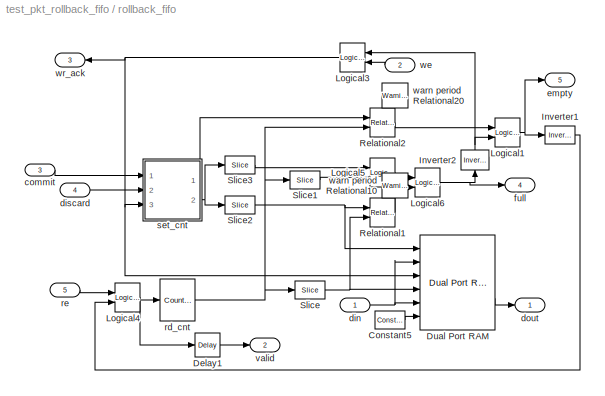
BLOCK [SubSystem] rollback_fifo
  FunctionWithSeparateData = off
  MaskDescription = A rollback fifo behaves as a normal fifo, except that data which are written in have to be \"committed\" before they become available for readout.  Moreover, any data which are written in and have not been committed can be \"discarded\", and will never be made available for readout.
  MaskEnableString = on
  MaskIconFrame = on
  MaskIconOpaque = on
  MaskIconRotate = none
  MaskIconUnits = autoscale
  MaskPromptString = Fifo Depth (2^?):
  MaskStyleString = edit
  MaskToolTipString = on
  MaskTunableValueString = on
  MaskValueString = 6
  MaskVariables = depth_bits=@1;
  MaskVisibilityString = on
  MinAlgLoopOccurrences = off
  Ports = [5, 5]
  RTWSystemCode = Auto
BLOCK [Reference] rollback_fifo/Constant5  REF=xbsIndex_r4/Constant
  Ports = [0, 1]
  SourceBlock = xbsIndex_r4/Constant
  SourceType = Xilinx Constant Block Block
  arith_type = Boolean
  bin_pt = 0
  block_type = constant
  block_version = 10.1.3
  carry = CIN
  const = 0
  dbl_ovrd = off
  dsp48_infoedit = The use of this block for DSP48 instructions is deprecated.  Please use the Opmode block.
  equ = P=C
  explicit_period = on
  has_advanced_control = 0
  inp1 = P
  inp2 = PCIN>>17
  n_bits = 1
  opr = +
  opselect = C
  period = 1
  sg_icon_stat = 30,18,0,1,white,blue,0,72d575a1,right
  sg_mask_display = fprintf('','COMMENT: begin icon graphics');\npatch([0 30 30 0 ],[0 0 18 18 ],[0.77 0.82 0.91]);\npatch([10 7 11 7 10 15 16 17 22 18 14 11 15 11 14 18 22 17 16 15 10 ],[2 5 9 13 16 16 15 16 16 12 16 13 9 5 2 6 2 2 3 2 2 ],[0.98 0.96 0.92]);\nplot([0 30 30 0 0 ],[0 0 18 18 0 ]);\nfprintf('','COMMENT: end icon graphics');\nfprintf('','COMMENT: begin icon text');\ncolor('black');port_label('output',1,...<+46ch>
  sggui_pos = -1,-1,-1,-1
BLOCK [Reference] rollback_fifo/Delay1  REF=xbsIndex_r4/Delay
  Ports = [1, 1]
  SourceBlock = xbsIndex_r4/Delay
  SourceType = Xilinx Delay Block
  block_type = delay
  block_version = 10.1.3
  dbl_ovrd = off
  en = off
  has_advanced_control = 0
  infoedit = Hardware notes: A delay line is a chain, each link of which is an SRL16 followed by a flip-flop.
  latency = 1
  reg_retiming = off
  sg_icon_stat = 25,24,1,1,white,blue,0,fc531c0e,right
  sg_mask_display = fprintf('','COMMENT: begin icon graphics');\npatch([0 25 25 0 ],[0 0 24 24 ],[0.77 0.82 0.91]);\npatch([6 2 8 2 6 12 14 16 23 18 13 9 15 9 13 18 23 16 14 12 6 ],[3 7 13 19 23 23 21 23 23 18 23 19 13 7 3 8 3 3 5 3 3 ],[0.98 0.96 0.92]);\nplot([0 25 25 0 0 ],[0 0 24 24 0 ]);\nfprintf('','COMMENT: end icon graphics');\nfprintf('','COMMENT: begin icon text');\ncolor('black');disp('z^{-1}','texmode','o...<+45ch>
  sggui_pos = -1,-1,-1,-1
  xl_area = [0, 0, 0, 0, 0, 0, 0]
  xl_use_area = off
BLOCK [Reference] rollback_fifo/Dual Port RAM  REF=xbsIndex_r4/Dual Port RAM
  Ports = [6, 2]
  SourceBlock = xbsIndex_r4/Dual Port RAM
  SourceType = Xilinx Dual Port Random Access Memory Block
  block_type = dpram
  block_version = 10.1.3
  dbl_ovrd = off
  depth = 2^depth_bits
  distributed_mem = Block RAM
  en_a = off
  en_b = off
  has_advanced_control = 0
  initVector = 0
  init_a = 0
  init_b = 0
  latency = 1
  optimize = Area
  rst_a = off
  rst_b = off
  sg_icon_stat = 75,95,1,1,white,blue,0,f19ffcf5,right
  sg_mask_display = fprintf('','COMMENT: begin icon graphics');\npatch([0 75 75 0 ],[0 0 95 95 ],[0.77 0.82 0.91]);\npatch([17 5 23 5 17 37 42 47 68 51 35 23 40 23 35 51 68 47 42 37 17 ],[18 30 48 66 78 78 73 78 78 61 77 65 48 31 19 35 18 18 23 18 18 ],[0.98 0.96 0.92]);\nplot([0 75 75 0 0 ],[0 0 95 95 0 ]);\nfprintf('','COMMENT: end icon graphics');\nfprintf('','COMMENT: begin icon text');\ncolor('black');port_label...<+378ch>
  sggui_pos = 20,20,384,398
  use_rpm = off
  write_mode_A = Read Before Write
  write_mode_B = Read Before Write
  xl_area = [0, 0, 0, 0, 0, 0, 0]
  xl_use_area = off
BLOCK [Reference] rollback_fifo/Inverter1  REF=xbsIndex_r4/Inverter
  Ports = [1, 1]
  SourceBlock = xbsIndex_r4/Inverter
  SourceType = Xilinx Inverter Block
  block_type = inv
  block_version = 10.1.3
  dbl_ovrd = off
  en = off
  has_advanced_control = 0
  infoedit = Bitwise logical negation (one's complement) operator.
  latency = 0
  sg_icon_stat = 30,18,1,1,white,blue,0,1ab4a85f,right
  sg_mask_display = fprintf('','COMMENT: begin icon graphics');\npatch([0 30 30 0 ],[0 0 18 18 ],[0.77 0.82 0.91]);\npatch([10 7 11 7 10 15 16 17 22 18 14 11 15 11 14 18 22 17 16 15 10 ],[2 5 9 13 16 16 15 16 16 12 16 13 9 5 2 6 2 2 3 2 2 ],[0.98 0.96 0.92]);\nplot([0 30 30 0 0 ],[0 0 18 18 0 ]);\nfprintf('','COMMENT: end icon graphics');\nfprintf('','COMMENT: begin icon text');\ncolor('black');disp('not');\nfprintf(...<+31ch>
  sggui_pos = -1,-1,-1,-1
  xl_area = [0, 0, 0, 0, 0, 0, 0]
  xl_use_area = off
BLOCK [Reference] rollback_fifo/Inverter2  REF=xbsIndex_r4/Inverter
  Ports = [1, 1]
  SourceBlock = xbsIndex_r4/Inverter
  SourceType = Xilinx Inverter Block
  block_type = inv
  block_version = 10.1.3
  dbl_ovrd = off
  en = off
  has_advanced_control = 0
  infoedit = Bitwise logical negation (one's complement) operator.
  latency = 0
  sg_icon_stat = 28,20,1,1,white,blue,0,1ab4a85f,up
  sg_mask_display = fprintf('','COMMENT: begin icon graphics');\npatch([0 28 28 0 ],[0 0 20 20 ],[0.77 0.82 0.91]);\npatch([8 5 10 5 8 13 14 15 21 17 13 10 15 10 13 17 21 15 14 13 8 ],[2 5 10 15 18 18 17 18 18 14 18 15 10 5 2 6 2 2 3 2 2 ],[0.98 0.96 0.92]);\nplot([0 28 28 0 0 ],[0 0 20 20 0 ]);\nfprintf('','COMMENT: end icon graphics');\nfprintf('','COMMENT: begin icon text');\ncolor('black');disp('not');\nfprintf('...<+30ch>
  sggui_pos = -1,-1,-1,-1
  xl_area = [0, 0, 0, 0, 0, 0, 0]
  xl_use_area = off
BLOCK [Reference] rollback_fifo/Logical1  REF=xbsIndex_r4/Logical
  Ports = [2, 1]
  SourceBlock = xbsIndex_r4/Logical
  SourceType = Xilinx Logical Block Block
  align_bp = on
  arith_type = Unsigned
  bin_pt = 2
  block_type = logical
  block_version = 10.1.3
  dbl_ovrd = off
  en = off
  has_advanced_control = 0
  inputs = 2
  latency = 0
  logical_function = AND
  n_bits = 8
  precision = Full
  sg_icon_stat = 25,29,1,1,white,blue,0,087b5522,right
  sg_mask_display = fprintf('','COMMENT: begin icon graphics');\npatch([0 25 25 0 ],[0 0 29 29 ],[0.77 0.82 0.91]);\npatch([6 2 8 2 6 13 15 17 24 18 13 9 14 9 13 18 24 17 15 13 6 ],[5 9 15 21 25 25 23 25 25 19 24 20 15 10 6 11 5 5 7 5 5 ],[0.98 0.96 0.92]);\nplot([0 25 25 0 0 ],[0 0 29 29 0 ]);\nfprintf('','COMMENT: end icon graphics');\nfprintf('','COMMENT: begin icon text');\ncolor('black');disp('\\newlineand\\newl...<+68ch>  <repeated x4 — deduplicated; at blocks: Logical1, Logical3, Logical4, Logical6>
  sggui_pos = -1,-1,-1,-1
  xl_area = [0, 0, 0, 0, 0, 0, 0]
  xl_use_area = off
BLOCK [Reference] rollback_fifo/Logical3  REF=xbsIndex_r4/Logical
  Ports = [2, 1]
  SourceBlock = xbsIndex_r4/Logical
  SourceType = Xilinx Logical Block Block
  align_bp = on
  arith_type = Unsigned
  bin_pt = 2
  block_type = logical
  block_version = 10.1.3
  dbl_ovrd = off
  en = off
  has_advanced_control = 0
  inputs = 2
  latency = 0
  logical_function = AND
  n_bits = 8
  precision = Full
  sg_icon_stat = 25,29,1,1,white,blue,0,087b5522,left
  sggui_pos = -1,-1,-1,-1
  xl_area = [0, 0, 0, 0, 0, 0, 0]
  xl_use_area = off
BLOCK [Reference] rollback_fifo/Logical4  REF=xbsIndex_r4/Logical
  Ports = [2, 1]
  SourceBlock = xbsIndex_r4/Logical
  SourceType = Xilinx Logical Block Block
  align_bp = on
  arith_type = Unsigned
  bin_pt = 2
  block_type = logical
  block_version = 10.1.3
  dbl_ovrd = off
  en = off
  has_advanced_control = 0
  inputs = 2
  latency = 0
  logical_function = AND
  n_bits = 8
  precision = Full
  sg_icon_stat = 25,29,1,1,white,blue,0,087b5522,right
  sggui_pos = -1,-1,-1,-1
  xl_area = [0, 0, 0, 0, 0, 0, 0]
  xl_use_area = off
BLOCK [Reference] rollback_fifo/Logical5  REF=xbsIndex_r4/Logical
  Ports = [2, 1]
  SourceBlock = xbsIndex_r4/Logical
  SourceType = Xilinx Logical Block Block
  align_bp = on
  arith_type = Unsigned
  bin_pt = 2
  block_type = logical
  block_version = 10.1.3
  dbl_ovrd = off
  en = off
  has_advanced_control = 0
  inputs = 2
  latency = 0
  logical_function = XOR
  n_bits = 8
  precision = Full
  sg_icon_stat = 25,29,2,1,white,blue,0,54bbd59c,right
  sg_mask_display = fprintf('','COMMENT: begin icon graphics');\npatch([0 25 25 0 ],[0 0 29 29 ],[0.77 0.82 0.91]);\npatch([6 2 8 2 6 13 15 17 24 18 13 9 14 9 13 18 24 17 15 13 6 ],[5 9 15 21 25 25 23 25 25 19 24 20 15 10 6 11 5 5 7 5 5 ],[0.98 0.96 0.92]);\nplot([0 25 25 0 0 ],[0 0 29 29 0 ]);\nfprintf('','COMMENT: end icon graphics');\nfprintf('','COMMENT: begin icon text');\ncolor('black');disp('\\newlinexor\\newl...<+68ch>
  sggui_pos = -1,-1,-1,-1
  xl_area = [0, 0, 0, 0, 0, 0, 0]
  xl_use_area = off
BLOCK [Reference] rollback_fifo/Logical6  REF=xbsIndex_r4/Logical
  Ports = [2, 1]
  SourceBlock = xbsIndex_r4/Logical
  SourceType = Xilinx Logical Block Block
  align_bp = on
  arith_type = Unsigned
  bin_pt = 2
  block_type = logical
  block_version = 10.1.3
  dbl_ovrd = off
  en = off
  has_advanced_control = 0
  inputs = 2
  latency = 0
  logical_function = AND
  n_bits = 8
  precision = Full
  sg_icon_stat = 25,29,1,1,white,blue,0,087b5522,right
  sggui_pos = -1,-1,-1,-1
  xl_area = [0, 0, 0, 0, 0, 0, 0]
  xl_use_area = off
BLOCK [Reference] rollback_fifo/Relational1  REF=xbsIndex_r4/Relational
  Ports = [2, 1]
  SourceBlock = xbsIndex_r4/Relational
  SourceType = Xilinx Arithmetic Relational Operator Block
  block_type = relational
  block_version = 10.1.3
  dbl_ovrd = off
  en = off
  has_advanced_control = 0
  latency = 0
  mode = a=b
  sg_icon_stat = 25,29,2,1,white,blue,0,1b68ef8e,right
  sg_mask_display = fprintf('','COMMENT: begin icon graphics');\npatch([0 25 25 0 ],[0 0 29 29 ],[0.77 0.82 0.91]);\npatch([6 2 8 2 6 13 15 17 24 18 13 9 14 9 13 18 24 17 15 13 6 ],[5 9 15 21 25 25 23 25 25 19 24 20 15 10 6 11 5 5 7 5 5 ],[0.98 0.96 0.92]);\nplot([0 25 25 0 0 ],[0 0 29 29 0 ]);\nfprintf('','COMMENT: end icon graphics');\nfprintf('','COMMENT: begin icon text');\ncolor('black');port_label('input',1,'a'...<+160ch>
  sggui_pos = -1,-1,-1,-1
  xl_area = [0, 0, 0, 0, 0, 0, 0]
  xl_use_area = off
BLOCK [Reference] rollback_fifo/Relational2  REF=xbsIndex_r4/Relational
  Ports = [2, 1]
  SourceBlock = xbsIndex_r4/Relational
  SourceType = Xilinx Arithmetic Relational Operator Block
  block_type = relational
  block_version = 10.1.3
  dbl_ovrd = off
  en = off
  has_advanced_control = 0
  latency = 0
  mode = a=b
  sg_icon_stat = 25,29,2,1,white,blue,0,1b68ef8e,right
  sg_mask_display = fprintf('','COMMENT: begin icon graphics');\npatch([0 25 25 0 ],[0 0 29 29 ],[0.77 0.82 0.91]);\npatch([6 2 8 2 6 13 15 17 24 18 13 9 14 9 13 18 24 17 15 13 6 ],[5 9 15 21 25 25 23 25 25 19 24 20 15 10 6 11 5 5 7 5 5 ],[0.98 0.96 0.92]);\nplot([0 25 25 0 0 ],[0 0 29 29 0 ]);\nfprintf('','COMMENT: end icon graphics');\nfprintf('','COMMENT: begin icon text');\ncolor('black');port_label('input',1,'a'...<+160ch>
  sggui_pos = -1,-1,-1,-1
  xl_area = [0, 0, 0, 0, 0, 0, 0]
  xl_use_area = off
BLOCK [Reference] rollback_fifo/Slice  REF=xbsIndex_r4/Slice
  Ports = [1, 1]
  SourceBlock = xbsIndex_r4/Slice
  SourceType = Xilinx Bit Slice Extractor Block
  base0 = LSB of Input
  base1 = MSB of Input
  bit0 = 0
  bit1 = -1
  block_type = slice
  block_version = 10.1.3
  boolean_output = off
  dbl_ovrd = off
  has_advanced_control = 0
  mode = Two Bit Locations
  nbits = 1
  sg_icon_stat = 30,18,1,1,white,blue,0,b1026674,right
  sg_mask_display = fprintf('','COMMENT: begin icon graphics');\npatch([0 30 30 0 ],[0 0 18 18 ],[0.77 0.82 0.91]);\npatch([10 7 11 7 10 15 16 17 22 18 14 11 15 11 14 18 22 17 16 15 10 ],[2 5 9 13 16 16 15 16 16 12 16 13 9 5 2 6 2 2 3 2 2 ],[0.98 0.96 0.92]);\nplot([0 30 30 0 0 ],[0 0 18 18 0 ]);\nfprintf('','COMMENT: end icon graphics');\nfprintf('','COMMENT: begin icon text');\ncolor('black');port_label('output',1,...<+50ch>  <repeated x4 — deduplicated; at blocks: Slice, Slice1, Slice2, Slice3>
  sggui_pos = -1,-1,-1,-1
BLOCK [Reference] rollback_fifo/Slice1  REF=xbsIndex_r4/Slice
  Ports = [1, 1]
  SourceBlock = xbsIndex_r4/Slice
  SourceType = Xilinx Bit Slice Extractor Block
  base0 = LSB of Input
  base1 = MSB of Input
  bit0 = 0
  bit1 = 0
  block_type = slice
  block_version = 10.1.3
  boolean_output = on
  dbl_ovrd = off
  has_advanced_control = 0
  mode = Upper Bit Location + Width
  nbits = 1
  sg_icon_stat = 30,18,1,1,white,blue,0,b1026674,right
  sggui_pos = -1,-1,-1,-1
BLOCK [Reference] rollback_fifo/Slice2  REF=xbsIndex_r4/Slice
  Ports = [1, 1]
  SourceBlock = xbsIndex_r4/Slice
  SourceType = Xilinx Bit Slice Extractor Block
  base0 = LSB of Input
  base1 = MSB of Input
  bit0 = 0
  bit1 = -1
  block_type = slice
  block_version = 10.1.3
  boolean_output = off
  dbl_ovrd = off
  has_advanced_control = 0
  mode = Two Bit Locations
  nbits = 1
  sg_icon_stat = 30,18,1,1,white,blue,0,b1026674,right
  sggui_pos = -1,-1,-1,-1
BLOCK [Reference] rollback_fifo/Slice3  REF=xbsIndex_r4/Slice
  Ports = [1, 1]
  SourceBlock = xbsIndex_r4/Slice
  SourceType = Xilinx Bit Slice Extractor Block
  base0 = LSB of Input
  base1 = MSB of Input
  bit0 = 0
  bit1 = 0
  block_type = slice
  block_version = 10.1.3
  boolean_output = on
  dbl_ovrd = off
  has_advanced_control = 0
  mode = Upper Bit Location + Width
  nbits = 1
  sg_icon_stat = 30,18,1,1,white,blue,0,b1026674,right
  sggui_pos = -1,-1,-1,-1
BLOCK [Inport] rollback_fifo/commit
  IconDisplay = Port number
  OutDataType = sfix(16)
  OutScaling = 2^0
  Port = 3
BLOCK [Inport] rollback_fifo/din
  IconDisplay = Port number
  OutDataType = sfix(16)
  OutScaling = 2^0
BLOCK [Inport] rollback_fifo/discard
  IconDisplay = Port number
  OutDataType = sfix(16)
  OutScaling = 2^0
  Port = 4
BLOCK [Outport] rollback_fifo/dout
  IconDisplay = Port number
  OutDataType = sfix(16)
  OutScaling = 2^0
BLOCK [Outport] rollback_fifo/empty
  IconDisplay = Port number
  OutDataType = sfix(16)
  OutScaling = 2^0
  Port = 5
BLOCK [Outport] rollback_fifo/full
  IconDisplay = Port number
  OutDataType = sfix(16)
  OutScaling = 2^0
  Port = 4
BLOCK [Reference] rollback_fifo/rd_cnt  REF=xbsIndex_r4/Counter
  Ports = [1, 1]
  SourceBlock = xbsIndex_r4/Counter
  SourceType = Xilinx Counter Block
  arith_type = Unsigned
  bin_pt = 0
  block_type = counter
  block_version = 10.1.3
  cnt_by_val = 1
  cnt_to = Inf
  cnt_type = Free Running
  dbl_ovrd = off
  en = on
  explicit_period = on
  has_advanced_control = 0
  implementation = Fabric
  infoedit = Hardware notes: Free running counters are the least expensive in hardware.  A count limited counter is implemented by combining a counter with a comparator.
  load_pin = off
  n_bits = depth_bits + 1
  operation = Up
  period = 1
  rst = off
  sg_icon_stat = 35,42,1,1,white,blue,0,1018756c,right
  sg_mask_display = fprintf('','COMMENT: begin icon graphics');\npatch([0 35 35 0 ],[0 0 42 42 ],[0.77 0.82 0.91]);\npatch([8 2 10 2 8 17 20 23 33 25 18 13 21 13 18 25 33 23 20 17 8 ],[7 13 21 29 35 35 32 35 35 27 34 29 21 13 8 15 7 7 10 7 7 ],[0.98 0.96 0.92]);\nplot([0 35 35 0 0 ],[0 0 42 42 0 ]);\nfprintf('','COMMENT: end icon graphics');\nfprintf('','COMMENT: begin icon text');\ncolor('black');port_label('input',...<+95ch>
  sggui_pos = -1,-1,-1,-1
  start_count = 0
  use_behavioral_HDL = off
  use_rpm = on
  xl_area = [0, 0, 0, 0, 0, 0, 0]
  xl_use_area = off
BLOCK [Inport] rollback_fifo/re
  IconDisplay = Port number
  OutDataType = sfix(16)
  OutScaling = 2^0
  Port = 5
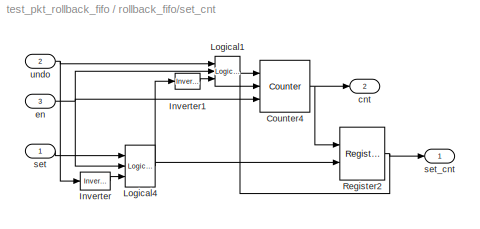
BLOCK [SubSystem] rollback_fifo/set_cnt
  FunctionWithSeparateData = off
  MinAlgLoopOccurrences = off
  Ports = [3, 2]
  RTWSystemCode = Auto
BLOCK [Reference] rollback_fifo/set_cnt/Counter4  REF=xbsIndex_r4/Counter
  Ports = [3, 1]
  SourceBlock = xbsIndex_r4/Counter
  SourceType = Xilinx Counter Block
  arith_type = Unsigned
  bin_pt = 0
  block_type = counter
  block_version = 10.1.3
  cnt_by_val = 1
  cnt_to = Inf
  cnt_type = Free Running
  dbl_ovrd = off
  en = on
  explicit_period = on
  has_advanced_control = 0
  implementation = Fabric
  infoedit = Hardware notes: Free running counters are the least expensive in hardware.  A count limited counter is implemented by combining a counter with a comparator.
  load_pin = on
  n_bits = depth_bits + 1
  operation = Up
  period = 1
  rst = off
  sg_icon_stat = 50,52,3,1,white,blue,0,904db1eb,right
  sg_mask_display = fprintf('','COMMENT: begin icon graphics');\npatch([0 50 50 0 ],[0 0 52 52 ],[0.77 0.82 0.91]);\npatch([11 3 15 3 11 24 28 32 46 35 24 16 28 16 24 35 46 32 28 24 11 ],[6 14 26 38 46 46 42 46 46 35 46 38 26 14 6 17 6 6 10 6 6 ],[0.98 0.96 0.92]);\nplot([0 50 50 0 0 ],[0 0 52 52 0 ]);\nfprintf('','COMMENT: end icon graphics');\nfprintf('','COMMENT: begin icon text');\ncolor('black');port_label('inpu...<+189ch>
  sggui_pos = -1,-1,-1,-1
  start_count = 0
  use_behavioral_HDL = off
  use_rpm = on
  xl_area = [0, 0, 0, 0, 0, 0, 0]
  xl_use_area = off
BLOCK [Reference] rollback_fifo/set_cnt/Inverter  REF=xbsIndex_r4/Inverter
  Ports = [1, 1]
  SourceBlock = xbsIndex_r4/Inverter
  SourceType = Xilinx Inverter Block
  block_type = inv
  block_version = 10.1.3
  dbl_ovrd = off
  en = off
  has_advanced_control = 0
  infoedit = Bitwise logical negation (one's complement) operator.
  latency = 0
  sg_icon_stat = 30,18,1,1,white,blue,0,1ab4a85f,right
  sg_mask_display = fprintf('','COMMENT: begin icon graphics');\npatch([0 30 30 0 ],[0 0 18 18 ],[0.77 0.82 0.91]);\npatch([10 7 11 7 10 15 16 17 22 18 14 11 15 11 14 18 22 17 16 15 10 ],[2 5 9 13 16 16 15 16 16 12 16 13 9 5 2 6 2 2 3 2 2 ],[0.98 0.96 0.92]);\nplot([0 30 30 0 0 ],[0 0 18 18 0 ]);\nfprintf('','COMMENT: end icon graphics');\nfprintf('','COMMENT: begin icon text');\ncolor('black');disp('not');\nfprintf(...<+31ch>
  sggui_pos = -1,-1,-1,-1
  xl_area = [0, 0, 0, 0, 0, 0, 0]
  xl_use_area = off
BLOCK [Reference] rollback_fifo/set_cnt/Inverter1  REF=xbsIndex_r4/Inverter
  Ports = [1, 1]
  SourceBlock = xbsIndex_r4/Inverter
  SourceType = Xilinx Inverter Block
  block_type = inv
  block_version = 10.1.3
  dbl_ovrd = off
  en = off
  has_advanced_control = 0
  infoedit = Bitwise logical negation (one's complement) operator.
  latency = 0
  sg_icon_stat = 25,16,1,1,white,blue,0,1ab4a85f,right
  sg_mask_display = fprintf('','COMMENT: begin icon graphics');\npatch([0 25 25 0 ],[0 0 16 16 ],[0.77 0.82 0.91]);\npatch([9 6 10 6 9 13 14 15 20 16 13 11 15 11 13 16 20 15 14 13 9 ],[2 5 9 13 16 16 15 16 16 12 15 13 9 5 3 6 2 2 3 2 2 ],[0.98 0.96 0.92]);\nplot([0 25 25 0 0 ],[0 0 16 16 0 ]);\nfprintf('','COMMENT: end icon graphics');\nfprintf('','COMMENT: begin icon text');\ncolor('black');disp('not');\nfprintf('',...<+28ch>
  sggui_pos = -1,-1,-1,-1
  xl_area = [0, 0, 0, 0, 0, 0, 0]
  xl_use_area = off
BLOCK [Reference] rollback_fifo/set_cnt/Logical1  REF=xbsIndex_r4/Logical
  Ports = [3, 1]
  SourceBlock = xbsIndex_r4/Logical
  SourceType = Xilinx Logical Block Block
  align_bp = on
  arith_type = Unsigned
  bin_pt = 2
  block_type = logical
  block_version = 10.1.3
  dbl_ovrd = off
  en = off
  has_advanced_control = 0
  inputs = 3
  latency = 0
  logical_function = AND
  n_bits = 8
  precision = Full
  sg_icon_stat = 25,30,3,1,white,blue,0,5c2bfaa2,right
  sg_mask_display = fprintf('','COMMENT: begin icon graphics');\npatch([0 25 25 0 ],[0 0 30 30 ],[0.77 0.82 0.91]);\npatch([6 2 8 2 6 13 15 17 24 18 13 9 14 9 13 18 24 17 15 13 6 ],[5 9 15 21 25 25 23 25 25 19 24 20 15 10 6 11 5 5 7 5 5 ],[0.98 0.96 0.92]);\nplot([0 25 25 0 0 ],[0 0 30 30 0 ]);\nfprintf('','COMMENT: end icon graphics');\nfprintf('','COMMENT: begin icon text');\ncolor('black');disp('\\newlineand\\newl...<+68ch>
  sggui_pos = -1,-1,-1,-1
  xl_area = [0, 0, 0, 0, 0, 0, 0]
  xl_use_area = off
BLOCK [Reference] rollback_fifo/set_cnt/Logical4  REF=xbsIndex_r4/Logical
  Ports = [3, 1]
  SourceBlock = xbsIndex_r4/Logical
  SourceType = Xilinx Logical Block Block
  align_bp = on
  arith_type = Unsigned
  bin_pt = 2
  block_type = logical
  block_version = 10.1.3
  dbl_ovrd = off
  en = off
  has_advanced_control = 0
  inputs = 3
  latency = 1
  logical_function = AND
  n_bits = 8
  precision = Full
  sg_icon_stat = 30,42,3,1,white,blue,0,6f1404f6,right
  sg_mask_display = fprintf('','COMMENT: begin icon graphics');\npatch([0 30 30 0 ],[0 0 42 42 ],[0.77 0.82 0.91]);\npatch([7 2 9 2 7 15 17 19 27 20 14 9 15 9 14 20 27 19 17 15 7 ],[9 14 21 28 33 33 31 33 33 26 32 27 21 15 10 16 9 9 11 9 9 ],[0.98 0.96 0.92]);\nplot([0 30 30 0 0 ],[0 0 42 42 0 ]);\nfprintf('','COMMENT: end icon graphics');\nfprintf('','COMMENT: begin icon text');\ncolor('black');disp('\\newlineand\\n...<+71ch>
  sggui_pos = -1,-1,-1,-1
  xl_area = [0, 0, 0, 0, 0, 0, 0]
  xl_use_area = off
BLOCK [Reference] rollback_fifo/set_cnt/Register2  REF=xbsIndex_r4/Register
  Ports = [2, 1]
  SourceBlock = xbsIndex_r4/Register
  SourceType = Xilinx Register Block
  block_type = register
  block_version = 10.1.3
  dbl_ovrd = off
  en = on
  has_advanced_control = 0
  init = 0
  rst = off
  sg_icon_stat = 45,53,2,1,white,blue,0,cc3303a0,right
  sg_mask_display = fprintf('','COMMENT: begin icon graphics');\npatch([0 45 45 0 ],[0 0 53 53 ],[0.77 0.82 0.91]);\npatch([10 3 14 3 10 22 25 28 41 31 21 14 25 14 21 31 41 28 25 22 10 ],[9 16 27 38 45 45 42 45 45 35 45 38 27 16 9 19 9 9 12 9 9 ],[0.98 0.96 0.92]);\nplot([0 45 45 0 0 ],[0 0 53 53 0 ]);\nfprintf('','COMMENT: end icon graphics');\nfprintf('','COMMENT: begin icon text');\ncolor('black');port_label('inpu...<+192ch>
  sggui_pos = -1,-1,-1,-1
  xl_area = [0, 0, 0, 0, 0, 0, 0]
  xl_use_area = off
BLOCK [Outport] rollback_fifo/set_cnt/cnt
  IconDisplay = Port number
  OutDataType = sfix(16)
  OutScaling = 2^0
  Port = 2
BLOCK [Inport] rollback_fifo/set_cnt/en
  IconDisplay = Port number
  OutDataType = sfix(16)
  OutScaling = 2^0
  Port = 3
BLOCK [Inport] rollback_fifo/set_cnt/set
  IconDisplay = Port number
  OutDataType = sfix(16)
  OutScaling = 2^0
BLOCK [Outport] rollback_fifo/set_cnt/set_cnt
  IconDisplay = Port number
  OutDataType = sfix(16)
  OutScaling = 2^0
BLOCK [Inport] rollback_fifo/set_cnt/undo
  IconDisplay = Port number
  OutDataType = sfix(16)
  OutScaling = 2^0
  Port = 2
BLOCK [Outport] rollback_fifo/valid
  IconDisplay = Port number
  OutDataType = sfix(16)
  OutScaling = 2^0
  Port = 2
BLOCK [Reference] rollback_fifo/warn period Relational10  REF=xbsReplacements_r4/Warning
  FunctionWithSeparateData = off
  Ports = []
  RTWMemSecDataConstants = Inherit from model
  RTWMemSecDataInternal = Inherit from model
  RTWMemSecDataParameters = Inherit from model
  RTWMemSecFuncExecute = Inherit from model
  RTWMemSecFuncInitTerm = Inherit from model
  ShowPortLabels = FromPortIcon
  SourceBlock = xbsReplacements_r4/Warning
  SystemSampleTime = -1
  period = 1
BLOCK [Reference] rollback_fifo/warn period Relational20  REF=xbsReplacements_r4/Warning
  FunctionWithSeparateData = off
  Ports = []
  RTWMemSecDataConstants = Inherit from model
  RTWMemSecDataInternal = Inherit from model
  RTWMemSecDataParameters = Inherit from model
  RTWMemSecFuncExecute = Inherit from model
  RTWMemSecFuncInitTerm = Inherit from model
  ShowPortLabels = FromPortIcon
  SourceBlock = xbsReplacements_r4/Warning
  SystemSampleTime = -1
  period = 1
BLOCK [Inport] rollback_fifo/we
  IconDisplay = Port number
  OutDataType = sfix(16)
  OutScaling = 2^0
  Port = 2
BLOCK [Outport] rollback_fifo/wr_ack
  IconDisplay = Port number
  OutDataType = sfix(16)
  OutScaling = 2^0
  Port = 3
ANNOTATION (root): designed to be used where ACK remains high for the duration of the packet;\nie do not connect ack to valid_out
ANNOTATION pkt_fifo_simple: PACKET LENGTH SHOULD NOT BE LESS THAN 3 WORDS
ANNOTATION pkt_fifo_simple: add a delay to the data line to allow\nip address to align.
LINE Convert11:1 -> Goto18:1
LINE Counter2:1 -> Gateway Out13:1
LINE Counter3:1 -> Gateway Out2:1
LINE Gateway Out10:1 -> Scope4:5
LINE Gateway Out11:1 -> Scope4:3
LINE Gateway Out12:1 -> Scope4:4
LINE Gateway Out13:1 -> Scope4:6
LINE Gateway Out2:1 -> Scope2:6
LINE Gateway Out3:1 -> Scope2:1
LINE Gateway Out4:1 -> Scope2:2
LINE Gateway Out5:1 -> Scope2:5
LINE Gateway Out6:1 -> Scope2:3
LINE Gateway Out7:1 -> Scope2:4
LINE Gateway Out8:1 -> Scope4:1
LINE Gateway Out9:1 -> Scope4:2
NET Inverter4:1 -> Logical7:2, pulse_ext1:1
LINE Logical1:1 -> Counter3:2
LINE Logical5:1 -> Counter2:1
LINE Logical6:1 -> Counter2:2
NET Logical7:1 -> Gateway Out12:1, Logical6:2, pkt_fifo_simple:5
LINE Logical8:1 -> Counter3:1
LINE discard:1 -> Convert11:1
LINE p_mux_up1/Concat:1 -> p_mux_up1/Delay8:1
LINE p_mux_up1/Constant1:1 -> p_mux_up1/Mux2:3
LINE p_mux_up1/Constant2:1 -> p_mux_up1/run:1
LINE p_mux_up1/Constant3:1 -> p_mux_up1/Mux2:2
NET p_mux_up1/Constant:1 -> p_mux_up1/Mux1:2, p_mux_up1/Mux:2
LINE p_mux_up1/Convert1:1 -> p_mux_up1/Mux1:3
LINE p_mux_up1/Convert2:1 -> p_mux_up1/Delay4:1
LINE p_mux_up1/Convert3:1 -> p_mux_up1/Inverter:1
LINE p_mux_up1/Counter1:1 -> p_mux_up1/Delay5:1
LINE p_mux_up1/Counter2:1 -> p_mux_up1/Relational:1
LINE p_mux_up1/Counter3:1 -> p_mux_up1/Relational5:1
LINE p_mux_up1/Counter4:1 -> p_mux_up1/Concat:2
LINE p_mux_up1/Delay1:1 -> p_mux_up1/Mux2:1
LINE p_mux_up1/Delay2:1 -> p_mux_up1/Counter1:2
LINE p_mux_up1/Delay3:1 -> p_mux_up1/Convert1:1
LINE p_mux_up1/Delay4:1 -> p_mux_up1/discard:1
LINE p_mux_up1/Delay5:1 -> p_mux_up1/d_out:1
LINE p_mux_up1/Delay8:1 -> p_mux_up1/dest_ip:1
LINE p_mux_up1/Inverter1:1 -> p_mux_up1/Convert2:1
LINE p_mux_up1/Inverter:1 -> p_mux_up1/Counter1:1
LINE p_mux_up1/Mux1:1 -> p_mux_up1/eof:1
LINE p_mux_up1/Mux2:1 -> p_mux_up1/Mux:3
LINE p_mux_up1/Mux:1 -> p_mux_up1/valid:1
NET p_mux_up1/Relational5:1 -> p_mux_up1/Counter3:2, p_mux_up1/Delay1:1, p_mux_up1/Delay2:1, p_mux_up1/negedge:1
NET p_mux_up1/Relational:1 -> p_mux_up1/Counter2:1, p_mux_up1/posedge:1
NET p_mux_up1/Slice1:1 -> p_mux_up1/Convert3:1, p_mux_up1/Inverter1:1, p_mux_up1/Mux1:1, p_mux_up1/Mux:1
LINE p_mux_up1/Slice:1 -> p_mux_up1/Concat:1
LINE p_mux_up1/ip_addr:1 -> p_mux_up1/Slice:1
LINE p_mux_up1/negedge:1 -> p_mux_up1/Delay3:1
LINE p_mux_up1/payload_len:1 -> p_mux_up1/Relational5:2
LINE p_mux_up1/period:1 -> p_mux_up1/Relational:2
NET p_mux_up1/posedge:1 -> p_mux_up1/Counter3:1, p_mux_up1/Counter4:1
LINE p_mux_up1/run:1 -> p_mux_up1/Slice1:1
LINE p_mux_up1/sim_IP:1 -> p_mux_up1/ip_addr:1
LINE p_mux_up1/sim_freq:1 -> p_mux_up1/period:1
LINE p_mux_up1/sim_length:1 -> p_mux_up1/payload_len:1
NET p_mux_up1:1 -> Gateway Out3:1, pkt_fifo_simple:1
NET p_mux_up1:2 -> Gateway Out4:1, Gateway Out7:1, Logical1:1, Logical8:1, pkt_fifo_simple:2
NET p_mux_up1:3 -> Gateway Out5:1, pkt_fifo_simple:3
NET p_mux_up1:4 -> Gateway Out6:1, Logical8:2, pkt_fifo_simple:4
LINE pkt_fifo_simple/Concat3:1 -> pkt_fifo_simple/status:1
LINE pkt_fifo_simple/Concat:1 -> pkt_fifo_simple/data_fifo:1
NET pkt_fifo_simple/Concat_status:1 -> pkt_fifo_simple/Concat3:2, pkt_fifo_simple/status_out:1
LINE pkt_fifo_simple/Constant7:1 -> pkt_fifo_simple/Concat3:1
LINE pkt_fifo_simple/Convert10:1 -> pkt_fifo_simple/Goto10:1
LINE pkt_fifo_simple/Convert1:1 -> pkt_fifo_simple/Concat_status:1
LINE pkt_fifo_simple/Convert2:1 -> pkt_fifo_simple/valid_eof_0:2
LINE pkt_fifo_simple/Convert3:1 -> pkt_fifo_simple/Convert10:1
LINE pkt_fifo_simple/Convert4:1 -> pkt_fifo_simple/Goto14:1
LINE pkt_fifo_simple/Convert5:1 -> pkt_fifo_simple/Concat_status:2
LINE pkt_fifo_simple/Convert6:1 -> pkt_fifo_simple/Concat:1
NET pkt_fifo_simple/Convert7:1 -> pkt_fifo_simple/Concat:2, pkt_fifo_simple/Goto5:1
LINE pkt_fifo_simple/Convert8:1 -> pkt_fifo_simple/Concat_status:3
LINE pkt_fifo_simple/Convert9:1 -> pkt_fifo_simple/Concat_status:4
NET pkt_fifo_simple/Convert:1 -> pkt_fifo_simple/Goto8:1, pkt_fifo_simple/data_fifo:2, pkt_fifo_simple/valid_eof_0:1
LINE pkt_fifo_simple/Delay1:1 -> pkt_fifo_simple/eof:1
LINE pkt_fifo_simple/Delay2:1 -> pkt_fifo_simple/data:1
LINE pkt_fifo_simple/Delay3:1 -> pkt_fifo_simple/valid:1
NET pkt_fifo_simple/Delay:1 -> pkt_fifo_simple/Delay3:1, pkt_fifo_simple/Goto11:1
LINE pkt_fifo_simple/From10:1 -> pkt_fifo_simple/Gateway Out40:1
LINE pkt_fifo_simple/From11:1 -> pkt_fifo_simple/Gateway Out39:1
LINE pkt_fifo_simple/From12:1 -> pkt_fifo_simple/Gateway Out41:1
LINE pkt_fifo_simple/From13:1 -> pkt_fifo_simple/Gateway Out1:1
LINE pkt_fifo_simple/From14:1 -> pkt_fifo_simple/Gateway Out25:1
LINE pkt_fifo_simple/From15:1 -> pkt_fifo_simple/Gateway Out29:1
LINE pkt_fifo_simple/From16:1 -> pkt_fifo_simple/Gateway Out28:1
LINE pkt_fifo_simple/From17:1 -> pkt_fifo_simple/Gateway Out30:1
LINE pkt_fifo_simple/From18:1 -> pkt_fifo_simple/Gateway Out31:1
LINE pkt_fifo_simple/From19:1 -> pkt_fifo_simple/Gateway Out42:1
LINE pkt_fifo_simple/From1:1 -> pkt_fifo_simple/Inverter4:1
LINE pkt_fifo_simple/From20:1 -> pkt_fifo_simple/Gateway Out27:1
LINE pkt_fifo_simple/From21:1 -> pkt_fifo_simple/Gateway Out2:1
LINE pkt_fifo_simple/From22:1 -> pkt_fifo_simple/ip_fifo:3
LINE pkt_fifo_simple/From23:1 -> pkt_fifo_simple/Gateway Out3:1
LINE pkt_fifo_simple/From24:1 -> pkt_fifo_simple/Inverter1:1
LINE pkt_fifo_simple/From25:1 -> pkt_fifo_simple/Delay:1
LINE pkt_fifo_simple/From26:1 -> pkt_fifo_simple/fifo_empty1:1
LINE pkt_fifo_simple/From27:1 -> pkt_fifo_simple/Inverter2:1
LINE pkt_fifo_simple/From28:1 -> pkt_fifo_simple/fifo_empty2:1
LINE pkt_fifo_simple/From29:1 -> pkt_fifo_simple/fifo_empty2:2
LINE pkt_fifo_simple/From2:1 -> pkt_fifo_simple/Gateway Out23:1
NET pkt_fifo_simple/From39:1 -> pkt_fifo_simple/Convert5:1, pkt_fifo_simple/Gateway Out8:1
LINE pkt_fifo_simple/From3:1 -> pkt_fifo_simple/commit:1
NET pkt_fifo_simple/From40:1 -> pkt_fifo_simple/Convert8:1, pkt_fifo_simple/Gateway Out6:1
NET pkt_fifo_simple/From41:1 -> pkt_fifo_simple/Convert1:1, pkt_fifo_simple/Gateway Out7:1
NET pkt_fifo_simple/From42:1 -> pkt_fifo_simple/Convert9:1, pkt_fifo_simple/Gateway Out14:1
LINE pkt_fifo_simple/From4:1 -> pkt_fifo_simple/Gateway Out24:1
LINE pkt_fifo_simple/From5:1 -> pkt_fifo_simple/Gateway Out22:1
LINE pkt_fifo_simple/From6:1 -> pkt_fifo_simple/fifo_full:2
LINE pkt_fifo_simple/From7:1 -> pkt_fifo_simple/fifo_empty:1
LINE pkt_fifo_simple/From8:1 -> pkt_fifo_simple/fifo_full:1
LINE pkt_fifo_simple/From9:1 -> pkt_fifo_simple/fifo_empty:2
LINE pkt_fifo_simple/Gateway Out14:1 -> pkt_fifo_simple/status1:4
LINE pkt_fifo_simple/Gateway Out1:1 -> pkt_fifo_simple/data_debug:8
LINE pkt_fifo_simple/Gateway Out22:1 -> pkt_fifo_simple/data_debug:2
LINE pkt_fifo_simple/Gateway Out23:1 -> pkt_fifo_simple/data_debug:3
LINE pkt_fifo_simple/Gateway Out24:1 -> pkt_fifo_simple/data_debug:1
LINE pkt_fifo_simple/Gateway Out25:1 -> pkt_fifo_simple/data_debug:4
LINE pkt_fifo_simple/Gateway Out27:1 -> pkt_fifo_simple/ip_debug:2
LINE pkt_fifo_simple/Gateway Out28:1 -> pkt_fifo_simple/ip_debug:3
LINE pkt_fifo_simple/Gateway Out29:1 -> pkt_fifo_simple/ip_debug:1
LINE pkt_fifo_simple/Gateway Out2:1 -> pkt_fifo_simple/data_debug:9
LINE pkt_fifo_simple/Gateway Out30:1 -> pkt_fifo_simple/ip_debug:4
LINE pkt_fifo_simple/Gateway Out31:1 -> pkt_fifo_simple/ip_debug:5
LINE pkt_fifo_simple/Gateway Out39:1 -> pkt_fifo_simple/data_debug:5
LINE pkt_fifo_simple/Gateway Out3:1 -> pkt_fifo_simple/data_debug:10
LINE pkt_fifo_simple/Gateway Out40:1 -> pkt_fifo_simple/data_debug:7
LINE pkt_fifo_simple/Gateway Out41:1 -> pkt_fifo_simple/data_debug:6
LINE pkt_fifo_simple/Gateway Out42:1 -> pkt_fifo_simple/ip_debug:6
LINE pkt_fifo_simple/Gateway Out6:1 -> pkt_fifo_simple/status1:3
LINE pkt_fifo_simple/Gateway Out7:1 -> pkt_fifo_simple/status1:1
LINE pkt_fifo_simple/Gateway Out8:1 -> pkt_fifo_simple/status1:2
LINE pkt_fifo_simple/Inverter1:1 -> pkt_fifo_simple/fifo_empty1:2
LINE pkt_fifo_simple/Inverter2:1 -> pkt_fifo_simple/ack_in:1
LINE pkt_fifo_simple/Inverter4:1 -> pkt_fifo_simple/commit:2
LINE pkt_fifo_simple/Reinterpret:1 -> pkt_fifo_simple/Convert7:1
NET pkt_fifo_simple/buf_data3:1 -> pkt_fifo_simple/Delay2:1, pkt_fifo_simple/Goto9:1
NET pkt_fifo_simple/buf_eof3:1 -> pkt_fifo_simple/Delay1:1, pkt_fifo_simple/Goto12:1
NET pkt_fifo_simple/commit:1 -> pkt_fifo_simple/Goto16:1, pkt_fifo_simple/ip_fifo:2
LINE pkt_fifo_simple/d_in:1 -> pkt_fifo_simple/Reinterpret:1
NET pkt_fifo_simple/data_fifo:1 -> pkt_fifo_simple/buf_data3:1, pkt_fifo_simple/buf_eof3:1
LINE pkt_fifo_simple/data_fifo:2 -> pkt_fifo_simple/Goto2:1
LINE pkt_fifo_simple/data_fifo:3 -> pkt_fifo_simple/Convert3:1
LINE pkt_fifo_simple/data_fifo:4 -> pkt_fifo_simple/Goto6:1
NET pkt_fifo_simple/dest_ip_0:1 -> pkt_fifo_simple/Goto15:1, pkt_fifo_simple/ip_fifo:1
LINE pkt_fifo_simple/eof_in:1 -> pkt_fifo_simple/Convert2:1
NET pkt_fifo_simple/fifo_empty1:1 -> pkt_fifo_simple/Goto17:1, pkt_fifo_simple/data_fifo:3
LINE pkt_fifo_simple/fifo_empty2:1 -> pkt_fifo_simple/Goto1:1
LINE pkt_fifo_simple/fifo_empty:1 -> pkt_fifo_simple/buffer_empty:1
NET pkt_fifo_simple/fifo_full:1 -> pkt_fifo_simple/buffer_overflow:1, pkt_fifo_simple/overflows:1
NET pkt_fifo_simple/ip_fifo:1 -> pkt_fifo_simple/Goto13:1, pkt_fifo_simple/ip_addr:1
LINE pkt_fifo_simple/ip_fifo:2 -> pkt_fifo_simple/Goto7:1
LINE pkt_fifo_simple/ip_fifo:4 -> pkt_fifo_simple/Goto3:1
LINE pkt_fifo_simple/overflows:1 -> pkt_fifo_simple/overflow_cnt:1
LINE pkt_fifo_simple/re:1 -> pkt_fifo_simple/Convert4:1
NET pkt_fifo_simple/valid_eof_0:1 -> pkt_fifo_simple/Convert6:1, pkt_fifo_simple/Goto4:1
LINE pkt_fifo_simple/valid_in:1 -> pkt_fifo_simple/Convert:1
LINE pkt_fifo_simple:1 -> Gateway Out8:1
NET pkt_fifo_simple:2 -> Gateway Out9:1, Logical5:2, Logical6:1
LINE pkt_fifo_simple:3 -> Gateway Out10:1
NET pkt_fifo_simple:4 -> Gateway Out11:1, Logical5:1
LINE pkt_fifo_simple:6 -> Inverter4:1
LINE pkt_fifo_simple:7 -> Logical1:2
LINE pulse_ext1:1 -> Logical7:1
LINE rollback_fifo/Constant5:1 -> rollback_fifo/Dual Port RAM:6
LINE rollback_fifo/Delay1:1 -> rollback_fifo/valid:1
LINE rollback_fifo/Dual Port RAM:2 -> rollback_fifo/dout:1
LINE rollback_fifo/Inverter1:1 -> rollback_fifo/Logical4:2
NET rollback_fifo/Inverter2:1 -> rollback_fifo/Logical1:2, rollback_fifo/Logical3:1
NET rollback_fifo/Logical1:1 -> rollback_fifo/Inverter1:1, rollback_fifo/empty:1
NET rollback_fifo/Logical3:1 -> rollback_fifo/Dual Port RAM:3, rollback_fifo/set_cnt:3, rollback_fifo/wr_ack:1
NET rollback_fifo/Logical4:1 -> rollback_fifo/Delay1:1, rollback_fifo/rd_cnt:1
LINE rollback_fifo/Logical5:1 -> rollback_fifo/Logical6:1
NET rollback_fifo/Logical6:1 -> rollback_fifo/Inverter2:1, rollback_fifo/full:1
LINE rollback_fifo/Relational1:1 -> rollback_fifo/Logical6:2
LINE rollback_fifo/Relational2:1 -> rollback_fifo/Logical1:1
LINE rollback_fifo/Slice1:1 -> rollback_fifo/Logical5:2
NET rollback_fifo/Slice2:1 -> rollback_fifo/Dual Port RAM:1, rollback_fifo/Relational1:1
LINE rollback_fifo/Slice3:1 -> rollback_fifo/Logical5:1
NET rollback_fifo/Slice:1 -> rollback_fifo/Dual Port RAM:4, rollback_fifo/Relational1:2
LINE rollback_fifo/commit:1 -> rollback_fifo/set_cnt:1
NET rollback_fifo/din:1 -> rollback_fifo/Dual Port RAM:2, rollback_fifo/Dual Port RAM:5
LINE rollback_fifo/discard:1 -> rollback_fifo/set_cnt:2
NET rollback_fifo/rd_cnt:1 -> rollback_fifo/Relational2:2, rollback_fifo/Slice1:1, rollback_fifo/Slice:1
LINE rollback_fifo/re:1 -> rollback_fifo/Logical4:1
NET rollback_fifo/set_cnt/Counter4:1 -> rollback_fifo/set_cnt/Register2:1, rollback_fifo/set_cnt/cnt:1
LINE rollback_fifo/set_cnt/Inverter1:1 -> rollback_fifo/set_cnt/Logical1:3
LINE rollback_fifo/set_cnt/Inverter:1 -> rollback_fifo/set_cnt/Logical4:3
LINE rollback_fifo/set_cnt/Logical1:1 -> rollback_fifo/set_cnt/Counter4:1
NET rollback_fifo/set_cnt/Logical4:1 -> rollback_fifo/set_cnt/Inverter1:1, rollback_fifo/set_cnt/Register2:2
NET rollback_fifo/set_cnt/Register2:1 -> rollback_fifo/set_cnt/Counter4:2, rollback_fifo/set_cnt/set_cnt:1
NET rollback_fifo/set_cnt/en:1 -> rollback_fifo/set_cnt/Counter4:3, rollback_fifo/set_cnt/Logical1:2, rollback_fifo/set_cnt/Logical4:2
LINE rollback_fifo/set_cnt/set:1 -> rollback_fifo/set_cnt/Logical4:1
NET rollback_fifo/set_cnt/undo:1 -> rollback_fifo/set_cnt/Inverter:1, rollback_fifo/set_cnt/Logical1:1
LINE rollback_fifo/set_cnt:1 -> rollback_fifo/Relational2:1
NET rollback_fifo/set_cnt:2 -> rollback_fifo/Slice2:1, rollback_fifo/Slice3:1
LINE rollback_fifo/we:1 -> rollback_fifo/Logical3:2
note: NET lines group one-source signal fan-out (src -> all destinations, sorted); 1:1 wires keep LINE
